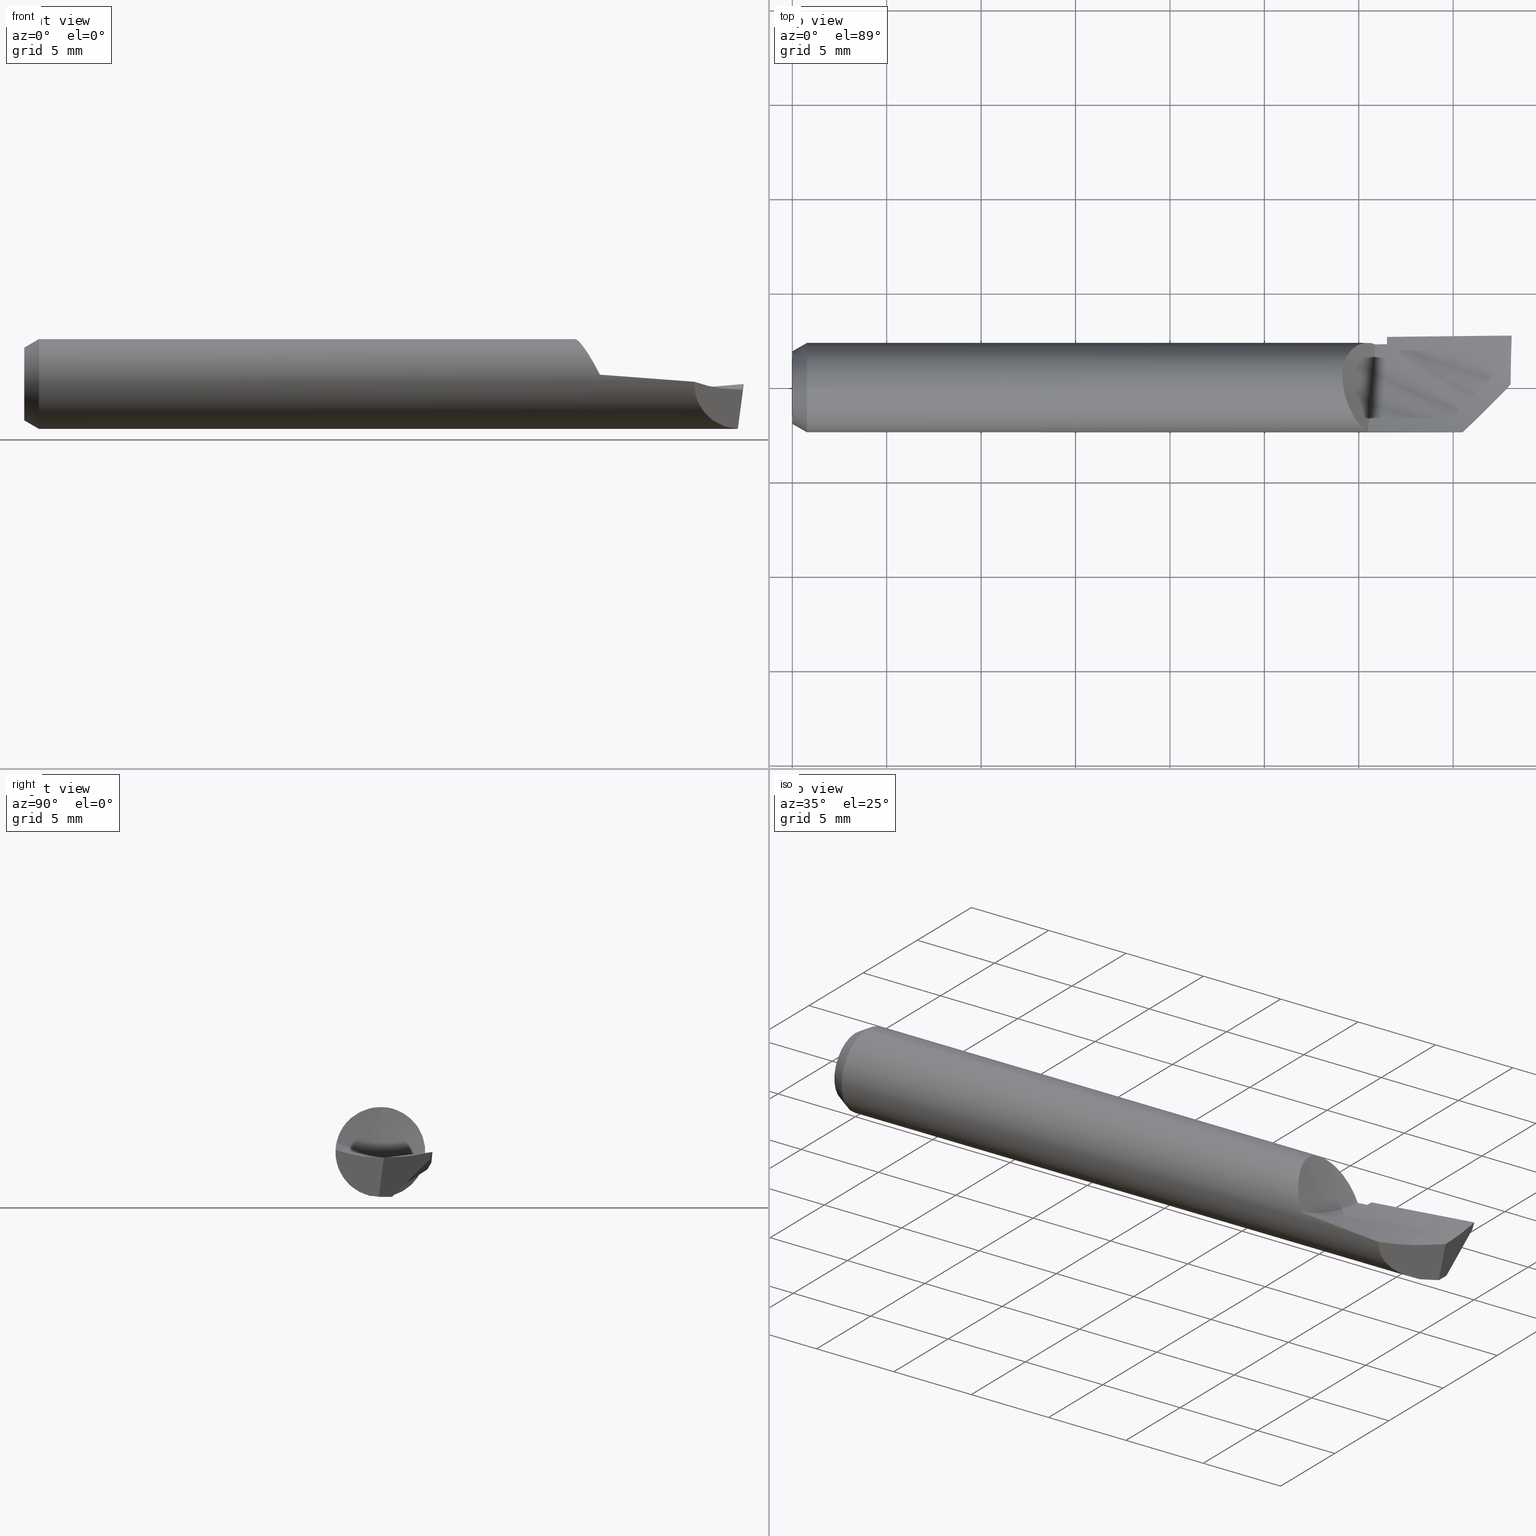
[diagram: canonical four-view strip — front | top / right | iso, engineering-drawing reading convention]
A machine part, canonical four-view strip (front | top / right | iso — engineering-drawing reading convention). The complete STEP part file that produces these views, byte-faithful:
ISO-10303-21;
HEADER;
FILE_DESCRIPTION (( 'STEP AP203' ),
    '1' );
FILE_NAME ('215754-HB210.STEP',
    '2024-07-31T18:05:51',
    ( '' ),
    ( '' ),
    'SwSTEP 2.0',
    'SolidWorks 2024',
    '' );
FILE_SCHEMA (( 'CONFIG_CONTROL_DESIGN' ));
ENDSEC;

DATA;
#1 = DIRECTION ( 'NONE',  ( -1.000000000000000000, -0.000000000000000000, -0.000000000000000000 ) ) ;
#2 = DIRECTION ( 'NONE',  ( -1.000000000000000000, -0.000000000000000000, -0.000000000000000000 ) ) ;
#3 = CARTESIAN_POINT ( 'NONE',  ( 1.499392605994886329, 0.09182044360717112053, -0.003761190601293689945 ) ) ;
#4 = FACE_OUTER_BOUND ( 'NONE', #578, .T. ) ;
#5 = B_SPLINE_CURVE_WITH_KNOTS ( 'NONE', 3,
 ( #485, #326, #271, #185 ),
 .UNSPECIFIED., .F., .F.,
 ( 4, 4 ),
 ( 0.0002546024990688748623, 0.006558907732038877537 ),
 .UNSPECIFIED. ) ;
#6 = DIRECTION ( 'NONE',  ( 0.000000000000000000, 0.000000000000000000, 1.000000000000000000 ) ) ;
#7 =( BOUNDED_CURVE ( )  B_SPLINE_CURVE ( 3, ( #621, #608, #144, #150 ),
 .UNSPECIFIED., .F., .T. ) 
 B_SPLINE_CURVE_WITH_KNOTS ( ( 4, 4 ),
 ( 6.212232684215154066, 6.245521343679157233 ),
 .UNSPECIFIED. ) 
 CURVE ( )  GEOMETRIC_REPRESENTATION_ITEM ( )  RATIONAL_B_SPLINE_CURVE ( ( 1.000000000000000000, 0.9999076575611176576, 0.9999076575611176576, 1.000000000000000000 ) ) 
 REPRESENTATION_ITEM ( '' )  );
#8 = CARTESIAN_POINT ( 'NONE',  ( 1.156695180967257208, 0.06469860383815320692, 0.06771607911251732725 ) ) ;
#9 = CARTESIAN_POINT ( 'NONE',  ( 1.148000000000000131, 0.006204244709569356649, 0.09344426064549808675 ) ) ;
#10 = CARTESIAN_POINT ( 'NONE',  ( 1.239999999999999991, 0.08074344207419088815, -0.04744279778861885261 ) ) ;
#11 = EDGE_CURVE ( 'NONE', #681, #609, #645, .T. ) ;
#12 = VERTEX_POINT ( 'NONE', #541 ) ;
#13 = PERSON_AND_ORGANIZATION ( #655, #398 ) ;
#14 = CARTESIAN_POINT ( 'NONE',  ( 1.498410732020100999, 0.1041796754470953601, -0.01263600234800665856 ) ) ;
#15 = B_SPLINE_CURVE_WITH_KNOTS ( 'NONE', 3,
 ( #107, #273, #529, #587 ),
 .UNSPECIFIED., .F., .F.,
 ( 4, 4 ),
 ( 0.000000000000000000, 1.000000000000000000 ),
 .UNSPECIFIED. ) ;
#16 = EDGE_LOOP ( 'NONE', ( #184, #514, #622 ) ) ;
#17 =( NAMED_UNIT ( * ) SI_UNIT ( $, .STERADIAN. ) SOLID_ANGLE_UNIT ( ) );
#18 = DIRECTION ( 'NONE',  ( 1.000000000000000000, 0.000000000000000000, 0.000000000000000000 ) ) ;
#19 = DIRECTION ( 'NONE',  ( 0.000000000000000000, 0.000000000000000000, 1.000000000000000000 ) ) ;
#20 = DATE_AND_TIME ( #24, #106 ) ;
#21 = CARTESIAN_POINT ( 'NONE',  ( 1.304444444444444962, 0.05141765096347571812, -0.02948195143761270925 ) ) ;
#22 = CARTESIAN_POINT ( 'NONE',  ( 1.171780070111329675, 0.08324920488106210548, 0.04294035540791954486 ) ) ;
#23 = EDGE_LOOP ( 'NONE', ( #656, #510, #566, #259 ) ) ;
#24 = CALENDAR_DATE ( 2024, 31, 7 ) ;
#25 = CARTESIAN_POINT ( 'NONE',  ( 1.202929359211318827, -0.06330286871536679183, 0.006143045300848167314 ) ) ;
#26 = CARTESIAN_POINT ( 'NONE',  ( 1.174651292824942850, 0.08538032817279551934, 0.03847803143860032554 ) ) ;
#27 = EDGE_LOOP ( 'NONE', ( #317, #426 ) ) ;
#28 = AXIS2_PLACEMENT_3D ( 'NONE', #676, #1, #101 ) ;
#29 = CC_DESIGN_PERSON_AND_ORGANIZATION_ASSIGNMENT ( #13, #637, ( #175 ) ) ;
#30 = VECTOR ( 'NONE', #458, 39.37007874015748143 ) ;
#31 = CARTESIAN_POINT ( 'NONE',  ( 1.174425359596326102, 0.08522188367699641554, 0.03882769481734219680 ) ) ;
#32 = EDGE_CURVE ( 'NONE', #430, #303, #52, .T. ) ;
#33 = ORIENTED_EDGE ( 'NONE', *, *, #525, .F. ) ;
#34 = CARTESIAN_POINT ( 'NONE',  ( 0.03057069675359059061, 0.000000000000000000, 0.000000000000000000 ) ) ;
#35 = ORIENTED_EDGE ( 'NONE', *, *, #245, .T. ) ;
#36 = CARTESIAN_POINT ( 'NONE',  ( 1.239999999999999547, 0.000000000000000000, -0.09364999999999999714 ) ) ;
#37 = ORIENTED_EDGE ( 'NONE', *, *, #308, .T. ) ;
#38 = SECURITY_CLASSIFICATION_LEVEL ( 'unclassified' ) ;
#39 = CARTESIAN_POINT ( 'NONE',  ( 1.199999999999999956, 0.000000000000000000, -0.09364999999999999714 ) ) ;
#40 = CARTESIAN_POINT ( 'NONE',  ( 0.000000000000000000, 0.000000000000000000, 0.000000000000000000 ) ) ;
#41 = ORIENTED_EDGE ( 'NONE', *, *, #615, .T. ) ;
#42 = CARTESIAN_POINT ( 'NONE',  ( 1.211257858874155380, 0.03503257738335138760, -0.02446814605735126921 ) ) ;
#43 = CARTESIAN_POINT ( 'NONE',  ( 1.148576821489901256, 0.001826048862966123945, 0.09363472875895696712 ) ) ;
#44 = ORIENTED_EDGE ( 'NONE', *, *, #296, .T. ) ;
#45 = CARTESIAN_POINT ( 'NONE',  ( 1.148000000000000131, -0.05547563012087897844, 0.1168117257122723851 ) ) ;
#46 = CARTESIAN_POINT ( 'NONE',  ( 1.167726105917510582, -0.05622133668068131362, 0.07491812423433109880 ) ) ;
#47 = EDGE_CURVE ( 'NONE', #430, #12, #613, .T. ) ;
#48 = VERTEX_POINT ( 'NONE', #379 ) ;
#49 = CARTESIAN_POINT ( 'NONE',  ( 1.307142857142857606, -0.03051731478104647774, -0.1268900357535900081 ) ) ;
#50 = CIRCLE ( 'NONE', #496, 0.07599999999999999811 ) ;
#51 = CARTESIAN_POINT ( 'NONE',  ( 1.160267250213739887, -0.04047724806400673087, 0.08466018272255967925 ) ) ;
#52 = CIRCLE ( 'NONE', #658, 0.09364999999999999714 ) ;
#53 = ORIENTED_EDGE ( 'NONE', *, *, #618, .T. ) ;
#54 = DIRECTION ( 'NONE',  ( 1.000000000000000000, 0.000000000000000000, 0.000000000000000000 ) ) ;
#55 =( BOUNDED_SURFACE ( )  B_SPLINE_SURFACE ( 3, 2, ( 
 ( #665, #348, #661, #298, #143 ),
 ( #499, #606, #560, #285, #301 ),
 ( #353, #21, #563, #90, #304 ),
 ( #508, #252, #457, #307, #178 ) ),
 .UNSPECIFIED., .F., .F., .T. ) 
 B_SPLINE_SURFACE_WITH_KNOTS ( ( 4, 4 ),
 ( 3, 2, 3 ),
 ( 0.000000000000000000, 1.000000000000000000 ),
 ( 0.000000000000000000, 0.5000000000000000000, 1.000000000000000000 ),
 .UNSPECIFIED. ) 
 GEOMETRIC_REPRESENTATION_ITEM ( )  RATIONAL_B_SPLINE_SURFACE ( (
 ( 1.000000000000000000, 0.9876883405951377704, 1.000000000000000000, 0.9876883405951377704, 1.000000000000000000),
 ( 0.9656170249359767865, 0.9537286770094286492, 0.9656170249359767865, 0.9537286770094286492, 0.9656170249359767865),
 ( 0.9656170249359767865, 0.9537286770094286492, 0.9656170249359767865, 0.9537286770094286492, 0.9656170249359767865),
 ( 1.000000000000000000, 0.9876883405951377704, 1.000000000000000000, 0.9876883405951377704, 1.000000000000000000) ) ) 
 REPRESENTATION_ITEM ( '' )  SURFACE ( )  );
#56 = CARTESIAN_POINT ( 'NONE',  ( 0.03057069675359059061, 0.000000000000000000, 0.000000000000000000 ) ) ;
#57 = DIRECTION ( 'NONE',  ( 0.000000000000000000, 0.000000000000000000, -1.000000000000000000 ) ) ;
#58 = CARTESIAN_POINT ( 'NONE',  ( 1.499284697934078148, 0.1065598484699400439, -0.005687555691664790067 ) ) ;
#59 = CARTESIAN_POINT ( 'NONE',  ( 1.370718729444907691, 0.1084999999999999853, -0.01136076838170603856 ) ) ;
#60 =( BOUNDED_CURVE ( )  B_SPLINE_CURVE ( 1, ( #670, #99 ),
 .UNSPECIFIED., .F., .T. ) 
 B_SPLINE_CURVE_WITH_KNOTS ( ( 2, 2 ),
 ( 0.002893631882954620250, 0.003411947105638062343 ),
 .UNSPECIFIED. ) 
 CURVE ( )  GEOMETRIC_REPRESENTATION_ITEM ( )  RATIONAL_B_SPLINE_CURVE ( ( 0.9945822379532474056, 0.9945822379532474056 ) ) 
 REPRESENTATION_ITEM ( '' )  );
#61 = EDGE_CURVE ( 'NONE', #311, #254, #267, .T. ) ;
#62 = CARTESIAN_POINT ( 'NONE',  ( 1.298652350113993048, -0.09316285039222936548, 0.01207143284203172559 ) ) ;
#63 = CIRCLE ( 'NONE', #242, 0.09364999999999999714 ) ;
#64 = CARTESIAN_POINT ( 'NONE',  ( 1.497655768038555157, 0.007005768038554515374, -0.01187811945948918750 ) ) ;
#65 = CARTESIAN_POINT ( 'NONE',  ( 1.240000000000011093, 0.1060807370296387303, -0.02278436374465247355 ) ) ;
#66 = CARTESIAN_POINT ( 'NONE',  ( 1.148731579005756620, 0.04212291331834853297, 0.08385177601506467460 ) ) ;
#67 = DIRECTION ( 'NONE',  ( 0.8660254037844377084, 6.123233995736780827E-17, 0.5000000000000012212 ) ) ;
#68 = CARTESIAN_POINT ( 'NONE',  ( 1.500000000000000222, 0.1084999999999999992, 0.000000000000000000 ) ) ;
#69 = DIRECTION ( 'NONE',  ( 0.000000000000000000, 0.000000000000000000, -1.000000000000000000 ) ) ;
#70 = CARTESIAN_POINT ( 'NONE',  ( 1.240000000000000213, 0.000000000000000000, 0.000000000000000000 ) ) ;
#71 = EDGE_CURVE ( 'NONE', #254, #48, #472, .T. ) ;
#72 = CARTESIAN_POINT ( 'NONE',  ( 1.500000000000000222, 0.1084999999999999992, 0.000000000000000000 ) ) ;
#73 = CARTESIAN_POINT ( 'NONE',  ( 1.194772460887949084, 0.09332505324249035228, 0.007808570231834198461 ) ) ;
#74 = APPROVAL_PERSON_ORGANIZATION ( #347, #405, #200 ) ;
#75 = CARTESIAN_POINT ( 'NONE',  ( 0.000000000000000000, 0.000000000000000000, 0.000000000000000000 ) ) ;
#76 = FACE_OUTER_BOUND ( 'NONE', #507, .T. ) ;
#77 = VERTEX_POINT ( 'NONE', #283 ) ;
#78 = CARTESIAN_POINT ( 'NONE',  ( 1.204122698830287330, 0.09357548210034757896, -0.006485616146305918372 ) ) ;
#79 = ORIENTED_EDGE ( 'NONE', *, *, #343, .T. ) ;
#80 = ADVANCED_FACE ( 'NONE', ( #589 ), #419, .F. ) ;
#81 = CARTESIAN_POINT ( 'NONE',  ( 1.200193042709057911, -0.09159678206204575901, 0.01949988679965345209 ) ) ;
#82 = AXIS2_PLACEMENT_3D ( 'NONE', #323, #54, #57 ) ;
#83 = FACE_OUTER_BOUND ( 'NONE', #266, .T. ) ;
#84 = AXIS2_PLACEMENT_3D ( 'NONE', #169, #2, #635 ) ;
#85 = CARTESIAN_POINT ( 'NONE',  ( 0.03057069675359059061, 1.146881727401496266E-17, -0.09364999999999999714 ) ) ;
#86 = ORIENTED_EDGE ( 'NONE', *, *, #128, .T. ) ;
#87 = DIRECTION ( 'NONE',  ( 0.1218739150664907706, 0.000000000000000000, 0.9925455903012041503 ) ) ;
#88 = CARTESIAN_POINT ( 'NONE',  ( 1.240000000000000213, 0.09093235533035093354, -0.02239708137674528005 ) ) ;
#89 = EDGE_CURVE ( 'NONE', #159, #100, #139, .T. ) ;
#90 = CARTESIAN_POINT ( 'NONE',  ( 0.9133333333333349957, 0.03979066797984411735, -0.04392792998639220847 ) ) ;
#91 = CARTESIAN_POINT ( 'NONE',  ( 1.164964881159045396, -0.05084867784880137825, 0.07870355941290420321 ) ) ;
#92 = EDGE_LOOP ( 'NONE', ( #562, #585, #35, #601, #456, #355, #524 ) ) ;
#93 = AXIS2_PLACEMENT_3D ( 'NONE', #581, #166, #6 ) ;
#94 = PRODUCT_DEFINITION_SHAPE ( 'NONE', 'NONE',  #175 ) ;
#95 = CYLINDRICAL_SURFACE ( 'NONE', #118, 0.1084999999999999992 ) ;
#96 = ORIENTED_EDGE ( 'NONE', *, *, #32, .T. ) ;
#97 = CARTESIAN_POINT ( 'NONE',  ( 1.307142857142857606, 0.1009593191957870867, -0.03136666973042469969 ) ) ;
#98 = EDGE_CURVE ( 'NONE', #609, #664, #231, .T. ) ;
#99 = CARTESIAN_POINT ( 'NONE',  ( 1.239999999999999991, 0.09788107471506568569, -0.03636530173190486576 ) ) ;
#100 = VERTEX_POINT ( 'NONE', #236 ) ;
#101 = DIRECTION ( 'NONE',  ( 0.000000000000000000, 0.000000000000000000, 1.000000000000000000 ) ) ;
#102 = DIRECTION ( 'NONE',  ( -0.7071067811865502373, 0.7071067811865447972, 0.000000000000000000 ) ) ;
#103 = EDGE_CURVE ( 'NONE', #664, #435, #349, .T. ) ;
#104 =( BOUNDED_CURVE ( )  B_SPLINE_CURVE ( 3, ( #625, #257, #455, #88 ),
 .UNSPECIFIED., .F., .T. ) 
 B_SPLINE_CURVE_WITH_KNOTS ( ( 4, 4 ),
 ( 9.255808676291182749E-05, 0.0004782894125386870907 ),
 .UNSPECIFIED. ) 
 CURVE ( )  GEOMETRIC_REPRESENTATION_ITEM ( )  RATIONAL_B_SPLINE_CURVE ( ( 0.9805422023702108358, 0.9794517822317697631, 0.9784376960691193448, 0.9774999438822595810 ) ) 
 REPRESENTATION_ITEM ( '' )  );
#105 = ORIENTED_EDGE ( 'NONE', *, *, #47, .T. ) ;
#106 = LOCAL_TIME ( 11, 5, 51.00000000000000000, #542 ) ;
#107 = CARTESIAN_POINT ( 'NONE',  ( 1.148000000000000131, 0.006204244709569356649, 0.09344426064549808675 ) ) ;
#108 = ORIENTED_EDGE ( 'NONE', *, *, #229, .T. ) ;
#109 = DIRECTION ( 'NONE',  ( 0.000000000000000000, -0.000000000000000000, 1.000000000000000000 ) ) ;
#110 = CARTESIAN_POINT ( 'NONE',  ( 1.229999274822195510, 0.08034742759774918253, -0.04811042881477656241 ) ) ;
#111 = DIRECTION ( 'NONE',  ( 0.000000000000000000, 0.000000000000000000, 1.000000000000000000 ) ) ;
#112 = ADVANCED_FACE ( 'NONE', ( #76 ), #438, .F. ) ;
#113 = ORIENTED_EDGE ( 'NONE', *, *, #330, .F. ) ;
#114 = LINE ( 'NONE', #284, #136 ) ;
#115 = DIRECTION ( 'NONE',  ( 1.000000000000000000, 0.000000000000000000, 0.000000000000000000 ) ) ;
#116 = AXIS2_PLACEMENT_3D ( 'NONE', #261, #109, #474 ) ;
#117 = DIRECTION ( 'NONE',  ( -1.000000000000000000, 0.000000000000000000, 0.000000000000000000 ) ) ;
#118 = AXIS2_PLACEMENT_3D ( 'NONE', #40, #402, #561 ) ;
#119 = FACE_OUTER_BOUND ( 'NONE', #179, .T. ) ;
#120 = FACE_OUTER_BOUND ( 'NONE', #23, .T. ) ;
#121 = CARTESIAN_POINT ( 'NONE',  ( 1.240000000000000213, 0.000000000000000000, 0.000000000000000000 ) ) ;
#122 = CC_DESIGN_PERSON_AND_ORGANIZATION_ASSIGNMENT ( #197, #610, ( #487 ) ) ;
#123 = APPROVAL_ROLE ( '' ) ;
#124 = DIRECTION ( 'NONE',  ( -1.000000000000000000, -0.000000000000000000, -0.000000000000000000 ) ) ;
#125 = PERSON_AND_ORGANIZATION ( #655, #398 ) ;
#126 = CARTESIAN_POINT ( 'NONE',  ( 1.173307641915292798, 0.08441651375760897413, 0.04056095321443215634 ) ) ;
#127 = VERTEX_POINT ( 'NONE', #391 ) ;
#128 = EDGE_CURVE ( 'NONE', #100, #159, #401, .T. ) ;
#129 = ORIENTED_EDGE ( 'NONE', *, *, #153, .T. ) ;
#130 = EDGE_CURVE ( 'NONE', #48, #629, #428, .T. ) ;
#131 = CARTESIAN_POINT ( 'NONE',  ( 1.174087616056179728, 0.08498293252717985247, 0.03935073517130165122 ) ) ;
#132 = ORIENTED_EDGE ( 'NONE', *, *, #296, .F. ) ;
#133 = PERSON_AND_ORGANIZATION ( #655, #398 ) ;
#134 = B_SPLINE_CURVE_WITH_KNOTS ( 'NONE', 3,
 ( #324, #593, #14, #227, #158, #381, #58, #475, #174, #221 ),
 .UNSPECIFIED., .F., .F.,
 ( 4, 3, 3, 4 ),
 ( 0.000000000000000000, 0.0001024766680105438662, 0.0002561918832182297407, 0.0004099073060419796723 ),
 .UNSPECIFIED. ) ;
#135 = CARTESIAN_POINT ( 'NONE',  ( 1.199968019606115321, 0.09394585953794216959, -8.313324166386058605E-05 ) ) ;
#136 = VECTOR ( 'NONE', #67, 39.37007874015748854 ) ;
#137 = APPROVAL_DATE_TIME ( #142, #405 ) ;
#138 = CARTESIAN_POINT ( 'NONE',  ( 0.7285714285714303129, 0.08777834388968180912, -0.06377469987373332594 ) ) ;
#139 = CIRCLE ( 'NONE', #233, 0.09364999999999999714 ) ;
#140 = PLANE ( 'NONE',  #382 ) ;
#141 = EDGE_LOOP ( 'NONE', ( #96, #392, #199, #553, #442, #626, #147, #449, #361, #517, #276, #306 ) ) ;
#142 = DATE_AND_TIME ( #248, #454 ) ;
#143 = CARTESIAN_POINT ( 'NONE',  ( 0.7177777777777798462, -0.1200748292999250927, 0.1043874820955170424 ) ) ;
#144 = CARTESIAN_POINT ( 'NONE',  ( 1.487537909818598125, -0.002078273994535322425, -0.09363270386187780292 ) ) ;
#145 = VERTEX_POINT ( 'NONE', #491 ) ;
#146 = CARTESIAN_POINT ( 'NONE',  ( 1.166899447017619051, -0.05465046207729526428, 0.07606594800267757472 ) ) ;
#147 = ORIENTED_EDGE ( 'NONE', *, *, #98, .T. ) ;
#148 = AXIS2_PLACEMENT_3D ( 'NONE', #223, #18, #162 ) ;
#149 = CARTESIAN_POINT ( 'NONE',  ( 1.148000000000000131, -0.004899846547459465150, 0.09241289850418149543 ) ) ;
#150 = CARTESIAN_POINT ( 'NONE',  ( 1.487533092774547372, -0.003116907225453087980, -0.09359811637713616461 ) ) ;
#151 =( BOUNDED_SURFACE ( )  B_SPLINE_SURFACE ( 1, 2, ( 
 ( #68, #281, #486, #249, #138 ),
 ( #235, #504, #230, #437, #650 ) ),
 .UNSPECIFIED., .F., .F., .T. ) 
 B_SPLINE_SURFACE_WITH_KNOTS ( ( 2, 2 ),
 ( 3, 2, 3 ),
 ( 0.000000000000000000, 1.000000000000000000 ),
 ( 0.000000000000000000, 0.5000000000000000000, 1.000000000000000000 ),
 .UNSPECIFIED. ) 
 GEOMETRIC_REPRESENTATION_ITEM ( )  RATIONAL_B_SPLINE_SURFACE ( (
 ( 1.000000000000000000, 0.9876883405951377704, 1.000000000000000000, 0.9876883405951377704, 1.000000000000000000),
 ( 1.000000000000000000, 0.9876883405951377704, 1.000000000000000000, 0.9876883405951377704, 1.000000000000000000) ) ) 
 REPRESENTATION_ITEM ( '' )  SURFACE ( )  );
#152 = ORIENTED_EDGE ( 'NONE', *, *, #153, .F. ) ;
#153 = EDGE_CURVE ( 'NONE', #314, #12, #653, .T. ) ;
#154 = CARTESIAN_POINT ( 'NONE',  ( 0.9214285714285728179, -0.06823486854704864657, -0.1112492264663436647 ) ) ;
#155 = CARTESIAN_POINT ( 'NONE',  ( 1.150325259475817097, -0.009300277287042121865, 0.09364995429079847611 ) ) ;
#156 = ORIENTED_EDGE ( 'NONE', *, *, #207, .F. ) ;
#157 = CARTESIAN_POINT ( 'NONE',  ( 0.000000000000000000, 1.038806647376742246E-17, 0.07599999999999999811 ) ) ;
#158 = CARTESIAN_POINT ( 'NONE',  ( 1.498807939443694615, 0.1052630847343396236, -0.009478130652275925522 ) ) ;
#159 = VERTEX_POINT ( 'NONE', #85 ) ;
#160 = FACE_OUTER_BOUND ( 'NONE', #413, .T. ) ;
#161 = CC_DESIGN_APPROVAL ( #405, ( #666 ) ) ;
#162 = DIRECTION ( 'NONE',  ( 0.000000000000000000, 0.000000000000000000, -1.000000000000000000 ) ) ;
#163 = ORIENTED_EDGE ( 'NONE', *, *, #516, .F. ) ;
#164 = PRODUCT_RELATED_PRODUCT_CATEGORY ( 'detail', '', ( #203 ) ) ;
#165 = CARTESIAN_POINT ( 'NONE',  ( 1.148853733171861569, -8.222118152487938208E-07, 0.09365456280322455307 ) ) ;
#166 = DIRECTION ( 'NONE',  ( -1.000000000000000000, -0.000000000000000000, -0.000000000000000000 ) ) ;
#167 = CARTESIAN_POINT ( 'NONE',  ( 1.157462637525535243, 0.06608533833252450140, 0.06635662391456143006 ) ) ;
#168 = COORDINATED_UNIVERSAL_TIME_OFFSET ( 8, 0, .BEHIND. ) ;
#169 = CARTESIAN_POINT ( 'NONE',  ( 0.000000000000000000, 0.000000000000000000, 0.000000000000000000 ) ) ;
#170 = ORIENTED_EDGE ( 'NONE', *, *, #215, .F. ) ;
#171 =( BOUNDED_CURVE ( )  B_SPLINE_CURVE ( 2, ( #368, #62, #638 ),
 .UNSPECIFIED., .F., .T. ) 
 B_SPLINE_CURVE_WITH_KNOTS ( ( 3, 3 ),
 ( 0.6173980248220553024, 0.8679066118161332666 ),
 .UNSPECIFIED. ) 
 CURVE ( )  GEOMETRIC_REPRESENTATION_ITEM ( )  RATIONAL_B_SPLINE_CURVE ( ( 0.9785522738925220843, 0.9753364756070597164, 0.9781958891234434628 ) ) 
 REPRESENTATION_ITEM ( '' )  );
#172 = PERSON_AND_ORGANIZATION ( #655, #398 ) ;
#173 = EDGE_CURVE ( 'NONE', #77, #664, #293, .T. ) ;
#174 = CARTESIAN_POINT ( 'NONE',  ( 1.499761529745958333, 0.1078543937081328230, -0.001896225925224543328 ) ) ;
#175 = PRODUCT_DEFINITION ( 'UNKNOWN', '', #487, #364 ) ;
#176 = DIRECTION ( 'NONE',  ( 0.000000000000000000, 0.000000000000000000, 1.000000000000000000 ) ) ;
#177 =( BOUNDED_CURVE ( )  B_SPLINE_CURVE ( 1, ( #216, #418 ),
 .UNSPECIFIED., .F., .T. ) 
 B_SPLINE_CURVE_WITH_KNOTS ( ( 2, 2 ),
 ( 0.0007316003027894401158, 0.0007571755484555225480 ),
 .UNSPECIFIED. ) 
 CURVE ( )  GEOMETRIC_REPRESENTATION_ITEM ( )  RATIONAL_B_SPLINE_CURVE ( ( 0.9945822379532474056, 0.9945822379532474056 ) ) 
 REPRESENTATION_ITEM ( '' )  );
#178 = CARTESIAN_POINT ( 'NONE',  ( 0.7177777777777798462, 0.1363835579169330459, -0.08194044288119670116 ) ) ;
#179 = EDGE_LOOP ( 'NONE', ( #407, #129 ) ) ;
#180 = CARTESIAN_POINT ( 'NONE',  ( 0.000000000000000000, 0.000000000000000000, -0.07599999999999999811 ) ) ;
#181 = DIRECTION ( 'NONE',  ( 1.000000000000000000, -0.000000000000000000, -0.000000000000000000 ) ) ;
#182 = CARTESIAN_POINT ( 'NONE',  ( 0.000000000000000000, 1.146881727401496266E-17, -0.09364999999999999714 ) ) ;
#183 = CARTESIAN_POINT ( 'NONE',  ( 1.227790124694641882, 0.09071330555731095535, -0.02328642545694233415 ) ) ;
#184 = ORIENTED_EDGE ( 'NONE', *, *, #61, .T. ) ;
#185 = CARTESIAN_POINT ( 'NONE',  ( 1.487763293907420126, 0.02399154554081828553, -0.09364999999999999714 ) ) ;
#186 = DIRECTION ( 'NONE',  ( 0.000000000000000000, 0.000000000000000000, -1.000000000000000000 ) ) ;
#187 = EDGE_CURVE ( 'NONE', #435, #568, #470, .T. ) ;
#188 = ORIENTED_EDGE ( 'NONE', *, *, #229, .F. ) ;
#189 = CALENDAR_DATE ( 2024, 31, 7 ) ;
#190 = CARTESIAN_POINT ( 'NONE',  ( 1.193124300786494008, -0.08870291174945742207, 0.03325054257018153492 ) ) ;
#191 = VERTEX_POINT ( 'NONE', #354 ) ;
#192 = PERSON_AND_ORGANIZATION ( #655, #398 ) ;
#193 = CARTESIAN_POINT ( 'NONE',  ( 1.215594912558480400, 0.09047690327886798167, -0.02417131508764828671 ) ) ;
#194 = CARTESIAN_POINT ( 'NONE',  ( 1.230000000000000204, 0.09757429370828984982, -0.03718060199562600587 ) ) ;
#195 = ORIENTED_EDGE ( 'NONE', *, *, #239, .F. ) ;
#196 = LOCAL_TIME ( 11, 5, 51.00000000000000000, #393 ) ;
#197 = PERSON_AND_ORGANIZATION ( #655, #398 ) ;
#198 = CARTESIAN_POINT ( 'NONE',  ( 1.394336912536108253, -0.09631308746389261044, -0.05083672434967974330 ) ) ;
#199 = ORIENTED_EDGE ( 'NONE', *, *, #128, .F. ) ;
#200 = APPROVAL_ROLE ( '' ) ;
#201 = CARTESIAN_POINT ( 'NONE',  ( 1.158214927748086209, -0.03519650015763708950, 0.08695964677823084243 ) ) ;
#202 = EDGE_LOOP ( 'NONE', ( #132, #37, #462 ) ) ;
#203 = PRODUCT ( '215754-HB210', '215754-HB210', '', ( #536 ) ) ;
#204 = CARTESIAN_POINT ( 'NONE',  ( 1.240000000000011093, 0.1060807370296387303, -0.02278436374465247355 ) ) ;
#205 = DIRECTION ( 'NONE',  ( -0.7071067811865447972, -0.7071067811865502373, 0.000000000000000000 ) ) ;
#206 = ORIENTED_EDGE ( 'NONE', *, *, #308, .F. ) ;
#207 = EDGE_CURVE ( 'NONE', #668, #159, #409, .T. ) ;
#208 = CIRCLE ( 'NONE', #294, 0.1084999999999999992 ) ;
#209 = CARTESIAN_POINT ( 'NONE',  ( 1.168921519492841066, -0.05838966857612342548, 0.07321969953285872856 ) ) ;
#210 = EDGE_LOOP ( 'NONE', ( #466, #292, #237, #572 ) ) ;
#211 = FACE_OUTER_BOUND ( 'NONE', #439, .T. ) ;
#212 = CARTESIAN_POINT ( 'NONE',  ( 1.148121537467483799, 0.005183671323934725336, 0.09351202468710630156 ) ) ;
#213 = ORIENTED_EDGE ( 'NONE', *, *, #32, .F. ) ;
#214 = CARTESIAN_POINT ( 'NONE',  ( 1.487763293907420126, 0.02399154554081828553, -0.09364999999999999714 ) ) ;
#215 = EDGE_CURVE ( 'NONE', #241, #303, #567, .T. ) ;
#216 = CARTESIAN_POINT ( 'NONE',  ( 1.240000000000000213, 0.009257787481579626832, -0.09365000000000006652 ) ) ;
#217 = CARTESIAN_POINT ( 'NONE',  ( 1.498113741625893836, 0.04115732881145446609, -0.01057558320799731159 ) ) ;
#218 = APPROVAL ( #547, 'UNSPECIFIED' ) ;
#219 = CARTESIAN_POINT ( 'NONE',  ( 1.148000000000000131, 0.03666875582908384057, 0.08617264557820555892 ) ) ;
#220 = APPROVAL_PERSON_ORGANIZATION ( #481, #277, #123 ) ;
#221 = CARTESIAN_POINT ( 'NONE',  ( 1.500000000000000222, 0.1084999999999999992, 0.000000000000000000 ) ) ;
#222 = CARTESIAN_POINT ( 'NONE',  ( 1.498894889242270212, 0.07501483299892787449, -0.006620206759045534767 ) ) ;
#223 = CARTESIAN_POINT ( 'NONE',  ( 0.03057069675359059061, 0.000000000000000000, 0.000000000000000000 ) ) ;
#224 = ORIENTED_EDGE ( 'NONE', *, *, #373, .F. ) ;
#225 = ADVANCED_FACE ( 'NONE', ( #515 ), #95, .T. ) ;
#226 = CALENDAR_DATE ( 2024, 31, 7 ) ;
#227 = CARTESIAN_POINT ( 'NONE',  ( 1.498569614866262834, 0.1046130388257509730, -0.01137285464977739503 ) ) ;
#228 = EDGE_LOOP ( 'NONE', ( #33, #188, #595, #452, #53 ) ) ;
#229 = EDGE_CURVE ( 'NONE', #369, #127, #60, .T. ) ;
#230 = CARTESIAN_POINT ( 'NONE',  ( 1.114285714285715212, 0.09364225179700762236, -0.04619814537202305421 ) ) ;
#231 = B_SPLINE_CURVE_WITH_KNOTS ( 'NONE', 3,
 ( #232, #66, #647, #280, #476, #387, #530, #8, #636, #167, #375, #244, #341, #489, #597, #342, #22, #126, #131, #31, #26, #338, #291, #604, #243, #441, #394, #448, #654, #551, #240, #548, #73, #135, #78, #497, #660, #247 ),
 .UNSPECIFIED., .F., .F.,
 ( 4, 2, 2, 1, 1, 2, 2, 2, 2, 1, 1, 1, 2, 2, 2, 2, 2, 1, 2, 2, 2, 4 ),
 ( 0.000000000000000000, 0.1250000000000141276, 0.1875000000000214828, 0.2187500000000251466, 0.2343750000000269784, 0.2421875000000279499, 0.2500000000000289213, 0.3750000000000379141, 0.4375000000000425215, 0.4687500000000447420, 0.4843750000000458522, 0.4921875000000469624, 0.4960937500000475731, 0.5000000000000481837, 0.6250000000000336398, 0.6875000000000257572, 0.7187500000000217604, 0.7343750000000192069, 0.7421875000000185407, 0.7500000000000177636, 0.8750000000000089928, 1.000000000000000000 ),
 .UNSPECIFIED. ) ;
#232 = CARTESIAN_POINT ( 'NONE',  ( 1.148000000000000131, 0.03666875582908384057, 0.08617264557820555892 ) ) ;
#233 = AXIS2_PLACEMENT_3D ( 'NONE', #56, #372, #19 ) ;
#234 = DIRECTION ( 'NONE',  ( 1.000000000000000000, 0.000000000000000000, 0.000000000000000000 ) ) ;
#235 = CARTESIAN_POINT ( 'NONE',  ( 1.500000000000000222, 0.1033350858006551326, -0.01500000000000000291 ) ) ;
#236 = CARTESIAN_POINT ( 'NONE',  ( 0.03057069675359059061, 0.000000000000000000, 0.09364999999999999714 ) ) ;
#237 = ORIENTED_EDGE ( 'NONE', *, *, #207, .T. ) ;
#238 = DIRECTION ( 'NONE',  ( -1.000000000000000000, -0.000000000000000000, -0.000000000000000000 ) ) ;
#239 = EDGE_CURVE ( 'NONE', #568, #681, #565, .T. ) ;
#240 = CARTESIAN_POINT ( 'NONE',  ( 1.193968417897632639, 0.09321453594628099915, 0.009030502199227338767 ) ) ;
#241 = VERTEX_POINT ( 'NONE', #305 ) ;
#242 = AXIS2_PLACEMENT_3D ( 'NONE', #378, #115, #576 ) ;
#243 = CARTESIAN_POINT ( 'NONE',  ( 1.184988112557211037, 0.09089690410810177812, 0.02269689307588242111 ) ) ;
#244 = CARTESIAN_POINT ( 'NONE',  ( 1.159837862559129018, 0.07019894292448460027, 0.06219465053792667258 ) ) ;
#245 = EDGE_CURVE ( 'NONE', #311, #77, #104, .T. ) ;
#246 =( BOUNDED_CURVE ( )  B_SPLINE_CURVE ( 2, ( #331, #537, #65 ),
 .UNSPECIFIED., .F., .T. ) 
 B_SPLINE_CURVE_WITH_KNOTS ( ( 3, 3 ),
 ( 0.000000000000000000, 0.3365654910810875755 ),
 .UNSPECIFIED. ) 
 CURVE ( )  GEOMETRIC_REPRESENTATION_ITEM ( )  RATIONAL_B_SPLINE_CURVE ( ( 1.000000000000000000, 0.9917126406127588778, 0.9945822379532467394 ) ) 
 REPRESENTATION_ITEM ( '' )  );
#247 = CARTESIAN_POINT ( 'NONE',  ( 1.215594912558480400, 0.09047690327886798167, -0.02417131508764828671 ) ) ;
#248 = CALENDAR_DATE ( 2024, 31, 7 ) ;
#249 = CARTESIAN_POINT ( 'NONE',  ( 0.9214285714285728179, 0.09787926403604831072, -0.04987197600415139292 ) ) ;
#250 = CARTESIAN_POINT ( 'NONE',  ( 1.487533092774547372, -0.003116907225453087980, -0.09359811637713616461 ) ) ;
#251 = ORIENTED_EDGE ( 'NONE', *, *, #71, .T. ) ;
#252 = CARTESIAN_POINT ( 'NONE',  ( 1.304444444444445184, 0.1606972725960162107, -0.01123090061018719617 ) ) ;
#253 = CARTESIAN_POINT ( 'NONE',  ( 1.500000000000000222, 0.1084999999999999992, 0.000000000000000000 ) ) ;
#254 = VERTEX_POINT ( 'NONE', #253 ) ;
#255 = B_SPLINE_CURVE_WITH_KNOTS ( 'NONE', 3,
 ( #214, #624, #460, #526 ),
 .UNSPECIFIED., .F., .F.,
 ( 4, 4 ),
 ( 2.604727758722901035E-05, 0.002872561671176806445 ),
 .UNSPECIFIED. ) ;
#256 = CARTESIAN_POINT ( 'NONE',  ( 1.114285714285715212, 0.09364225179700762236, -0.04619814537202305421 ) ) ;
#257 = CARTESIAN_POINT ( 'NONE',  ( 1.239999999999999991, 0.1010776689460062688, -0.02252625180451624243 ) ) ;
#258 = EDGE_CURVE ( 'NONE', #521, #145, #313, .T. ) ;
#259 = ORIENTED_EDGE ( 'NONE', *, *, #423, .F. ) ;
#260 = ORIENTED_EDGE ( 'NONE', *, *, #403, .F. ) ;
#261 = CARTESIAN_POINT ( 'NONE',  ( 1.199999999999999956, 0.000000000000000000, -0.09364999999999999714 ) ) ;
#262 = DIRECTION ( 'NONE',  ( 0.000000000000000000, 0.000000000000000000, -1.000000000000000000 ) ) ;
#263 = EDGE_LOOP ( 'NONE', ( #322, #290, #86, #156 ) ) ;
#264 = CARTESIAN_POINT ( 'NONE',  ( 1.147999999999999909, 0.1069463880967316399, 0.07909849010610423004 ) ) ;
#265 = CARTESIAN_POINT ( 'NONE',  ( 1.229999274822195510, 0.08034742759774918253, -0.04811042881477656241 ) ) ;
#266 = EDGE_LOOP ( 'NONE', ( #459, #416, #251, #206, #582, #383 ) ) ;
#267 =( BOUNDED_CURVE ( )  B_SPLINE_CURVE ( 2, ( #473, #59, #643 ),
 .UNSPECIFIED., .F., .T. ) 
 B_SPLINE_CURVE_WITH_KNOTS ( ( 3, 3 ),
 ( 0.6680663190920044237, 1.000000000000000000 ),
 .UNSPECIFIED. ) 
 CURVE ( )  GEOMETRIC_REPRESENTATION_ITEM ( )  RATIONAL_B_SPLINE_CURVE ( ( 0.9805422023702407008, 0.9779011347166750578, 0.9859596877570645512 ) ) 
 REPRESENTATION_ITEM ( '' )  );
#268 = DIRECTION ( 'NONE',  ( 0.000000000000000000, 0.000000000000000000, 1.000000000000000000 ) ) ;
#269 = CARTESIAN_POINT ( 'NONE',  ( 1.397117201850304857, -0.09353279814969597816, 0.004683820052929599069 ) ) ;
#270 = CARTESIAN_POINT ( 'NONE',  ( 1.500000000000000222, 0.1084999999999999992, 0.000000000000000000 ) ) ;
#271 = CARTESIAN_POINT ( 'NONE',  ( 1.405162067882042454, 0.01930639470269339755, -0.09364999999999995550 ) ) ;
#272 = VECTOR ( 'NONE', #544, 39.37007874015748143 ) ;
#273 = CARTESIAN_POINT ( 'NONE',  ( 1.148000000000000131, 0.01626035089777073603, 0.09060969966771643958 ) ) ;
#274 = ADVANCED_FACE ( 'NONE', ( #674 ), #140, .F. ) ;
#275 = AXIS2_PLACEMENT_3D ( 'NONE', #334, #117, #111 ) ;
#276 = ORIENTED_EDGE ( 'NONE', *, *, #411, .F. ) ;
#277 = APPROVAL ( #287, 'UNSPECIFIED' ) ;
#278 = CARTESIAN_POINT ( 'NONE',  ( 1.239999999999999991, 0.08074344207419088815, -0.04744279778861885261 ) ) ;
#279 = EDGE_CURVE ( 'NONE', #145, #617, #7, .T. ) ;
#280 = CARTESIAN_POINT ( 'NONE',  ( 1.152354427575245976, 0.05497717952771397076, 0.07587532363428109439 ) ) ;
#281 = CARTESIAN_POINT ( 'NONE',  ( 1.307142857142857606, 0.1085000000000000131, -0.01718471177521218446 ) ) ;
#282 = DIMENSIONAL_EXPONENTS ( 1.000000000000000000, 0.000000000000000000, 0.000000000000000000, 0.000000000000000000, 0.000000000000000000, 0.000000000000000000, 0.000000000000000000 ) ;
#283 = CARTESIAN_POINT ( 'NONE',  ( 1.240000000000000213, 0.09093235533035093354, -0.02239708137674528005 ) ) ;
#284 = CARTESIAN_POINT ( 'NONE',  ( 0.03057069675359059061, 1.146881727401496266E-17, 0.09364999999999999714 ) ) ;
#285 = CARTESIAN_POINT ( 'NONE',  ( 0.9133333333333349957, -0.05892680970412268737, 0.006371137203487211263 ) ) ;
#286 = DIRECTION ( 'NONE',  ( 1.000000000000000000, 0.000000000000000000, 0.000000000000000000 ) ) ;
#287 = APPROVAL_STATUS ( 'not_yet_approved' ) ;
#288 = ADVANCED_FACE ( 'NONE', ( #302 ), #360, .F. ) ;
#289 = CARTESIAN_POINT ( 'NONE',  ( 1.240000000000000213, 0.09364999999999999714, 0.000000000000000000 ) ) ;
#290 = ORIENTED_EDGE ( 'NONE', *, *, #671, .T. ) ;
#291 = CARTESIAN_POINT ( 'NONE',  ( 1.177129380349658305, 0.08708831898437832675, 0.03464762275841793554 ) ) ;
#292 = ORIENTED_EDGE ( 'NONE', *, *, #550, .F. ) ;
#293 =( BOUNDED_CURVE ( )  B_SPLINE_CURVE ( 2, ( #494, #183, #445 ),
 .UNSPECIFIED., .F., .T. ) 
 B_SPLINE_CURVE_WITH_KNOTS ( ( 3, 3 ),
 ( 0.3319336809084333928, 0.3630297608688256017 ),
 .UNSPECIFIED. ) 
 CURVE ( )  GEOMETRIC_REPRESENTATION_ITEM ( )  RATIONAL_B_SPLINE_CURVE ( ( 0.9774999438821363462, 0.9777465956879386466, 0.9780868586215527571 ) ) 
 REPRESENTATION_ITEM ( '' )  );
#294 = AXIS2_PLACEMENT_3D ( 'NONE', #570, #471, #268 ) ;
#295 = CARTESIAN_POINT ( 'NONE',  ( 1.176653163846027139, -0.07108318674311234209, 0.06187157980703892474 ) ) ;
#296 = EDGE_CURVE ( 'NONE', #617, #629, #527, .T. ) ;
#297 = AXIS2_PLACEMENT_3D ( 'NONE', #468, #519, #262 ) ;
#298 = CARTESIAN_POINT ( 'NONE',  ( 0.9133333333333349957, -0.1366081822285111214, 0.08536949745978415771 ) ) ;
#299 = CARTESIAN_POINT ( 'NONE',  ( 1.186920597602683092, -0.08303519900622281791, 0.04456531780849256469 ) ) ;
#300 = ORIENTED_EDGE ( 'NONE', *, *, #89, .F. ) ;
#301 = CARTESIAN_POINT ( 'NONE',  ( 0.7177777777777798462, -0.05650037319417050563, 0.01531991718997334669 ) ) ;
#302 = FACE_OUTER_BOUND ( 'NONE', #228, .T. ) ;
#303 = VERTEX_POINT ( 'NONE', #36 ) ;
#304 = CARTESIAN_POINT ( 'NONE',  ( 0.7177777777777798462, 0.03202968257815186348, -0.04900093333530534945 ) ) ;
#305 = CARTESIAN_POINT ( 'NONE',  ( 1.240000000000000213, 0.009257787481579626832, -0.09365000000000006652 ) ) ;
#306 = ORIENTED_EDGE ( 'NONE', *, *, #47, .F. ) ;
#307 = CARTESIAN_POINT ( 'NONE',  ( 0.9133333333333349957, 0.1493616491026159843, -0.06033940939105427587 ) ) ;
#308 = EDGE_CURVE ( 'NONE', #617, #48, #425, .T. ) ;
#309 = DIRECTION ( 'NONE',  ( 0.000000000000000000, 0.000000000000000000, 1.000000000000000000 ) ) ;
#310 = CARTESIAN_POINT ( 'NONE',  ( 1.148774162755310746, 0.0005224480527178247983, 0.09364890627534444567 ) ) ;
#311 = VERTEX_POINT ( 'NONE', #415 ) ;
#312 = CARTESIAN_POINT ( 'NONE',  ( 1.239999999999999991, 0.09788107471506568569, -0.03636530173190486576 ) ) ;
#313 = LINE ( 'NONE', #616, #498 ) ;
#314 = VERTEX_POINT ( 'NONE', #110 ) ;
#315 = CARTESIAN_POINT ( 'NONE',  ( 0.9214285714285728179, 0.08632518439822819967, -0.06102962101362140179 ) ) ;
#316 = ADVANCED_FACE ( 'NONE', ( #631 ), #479, .T. ) ;
#317 = ORIENTED_EDGE ( 'NONE', *, *, #11, .F. ) ;
#318 =( BOUNDED_CURVE ( )  B_SPLINE_CURVE ( 1, ( #312, #204 ),
 .UNSPECIFIED., .F., .T. ) 
 B_SPLINE_CURVE_WITH_KNOTS ( ( 2, 2 ),
 ( 2.168404344971008868E-19, 0.0004029534795321209912 ),
 .UNSPECIFIED. ) 
 CURVE ( )  GEOMETRIC_REPRESENTATION_ITEM ( )  RATIONAL_B_SPLINE_CURVE ( ( 0.9945822379532474056, 0.9945822379532474056 ) ) 
 REPRESENTATION_ITEM ( '' )  );
#319 = CC_DESIGN_PERSON_AND_ORGANIZATION_ASSIGNMENT ( #133, #657, ( #487 ) ) ;
#320 = DIRECTION ( 'NONE',  ( -1.000000000000000000, -0.000000000000000000, -0.000000000000000000 ) ) ;
#321 = UNCERTAINTY_MEASURE_WITH_UNIT (LENGTH_MEASURE( 1.000000000000000082E-05 ), #586, 'distance_accuracy_value', 'NONE');
#322 = ORIENTED_EDGE ( 'NONE', *, *, #615, .F. ) ;
#323 = CARTESIAN_POINT ( 'NONE',  ( 0.03057069675359059061, 0.000000000000000000, 0.000000000000000000 ) ) ;
#324 = CARTESIAN_POINT ( 'NONE',  ( 1.498093014994710481, 0.1033114702713285454, -0.01516179632514417543 ) ) ;
#325 = CARTESIAN_POINT ( 'NONE',  ( 1.229997824466591005, 0.009341362891033938229, -0.09318294598088670833 ) ) ;
#326 = CARTESIAN_POINT ( 'NONE',  ( 1.322563398559102099, 0.01457830066443163014, -0.09364999999999999714 ) ) ;
#327 = DIRECTION ( 'NONE',  ( 0.1220122463319276707, 0.1220122463319285866, 0.9850005195379714085 ) ) ;
#328 = ORIENTED_EDGE ( 'NONE', *, *, #386, .T. ) ;
#329 = CIRCLE ( 'NONE', #28, 0.07599999999999999811 ) ;
#330 = EDGE_CURVE ( 'NONE', #681, #609, #15, .T. ) ;
#331 = CARTESIAN_POINT ( 'NONE',  ( 1.500000000000000222, 0.1084999999999999992, 0.000000000000000000 ) ) ;
#332 = VECTOR ( 'NONE', #509, 39.37007874015748854 ) ;
#333 = DIRECTION ( 'NONE',  ( -1.000000000000000000, -0.000000000000000000, -0.000000000000000000 ) ) ;
#334 = CARTESIAN_POINT ( 'NONE',  ( 1.148000000000000131, 0.000000000000000000, 0.000000000000000000 ) ) ;
#335 = CARTESIAN_POINT ( 'NONE',  ( 1.169225650606404709, -0.05893110837954828457, 0.07278470785884573468 ) ) ;
#336 = PLANE ( 'NONE',  #677 ) ;
#337 = CC_DESIGN_APPROVAL ( #277, ( #175 ) ) ;
#338 = CARTESIAN_POINT ( 'NONE',  ( 1.174808038669047594, 0.08548901866737286526, 0.03823564250492614280 ) ) ;
#339 = ORIENTED_EDGE ( 'NONE', *, *, #386, .F. ) ;
#340 =( BOUNDED_CURVE ( )  B_SPLINE_CURVE ( 2, ( #265, #523, #10 ),
 .UNSPECIFIED., .F., .T. ) 
 B_SPLINE_CURVE_WITH_KNOTS ( ( 3, 3 ),
 ( 0.6505143596091164104, 0.6634345089193172118 ),
 .UNSPECIFIED. ) 
 CURVE ( )  GEOMETRIC_REPRESENTATION_ITEM ( )  RATIONAL_B_SPLINE_CURVE ( ( 0.9948189969154002110, 0.9946923966803868922, 0.9945822379532399671 ) ) 
 REPRESENTATION_ITEM ( '' )  );
#341 = CARTESIAN_POINT ( 'NONE',  ( 1.162293407963908010, 0.07366403736510233891, 0.05809885532553646370 ) ) ;
#342 = CARTESIAN_POINT ( 'NONE',  ( 1.170526225384182606, 0.08219295186751621185, 0.04490888344149509409 ) ) ;
#343 = EDGE_CURVE ( 'NONE', #314, #369, #340, .T. ) ;
#344 = FACE_OUTER_BOUND ( 'NONE', #92, .T. ) ;
#345 = ADVANCED_FACE ( 'NONE', ( #482 ), #628, .T. ) ;
#346 = CARTESIAN_POINT ( 'NONE',  ( 1.430128296819549893, -0.06052170318045099057, -0.007005743369842827410 ) ) ;
#347 = PERSON_AND_ORGANIZATION ( #655, #398 ) ;
#348 = CARTESIAN_POINT ( 'NONE',  ( 1.304444444444445184, -0.1563027274039834602, 0.03897696697269068672 ) ) ;
#349 = B_SPLINE_CURVE_WITH_KNOTS ( 'NONE', 3,
 ( #193, #663, #600, #388, #25, #81 ),
 .UNSPECIFIED., .F., .F.,
 ( 4, 2, 4 ),
 ( 0.000000000000000000, 0.5000000000000000000, 1.000000000000000000 ),
 .UNSPECIFIED. ) ;
#350 = CARTESIAN_POINT ( 'NONE',  ( 1.382908368565247015, -0.1077416314347540566, -0.09999999999999999167 ) ) ;
#351 = ORIENTED_EDGE ( 'NONE', *, *, #187, .F. ) ;
#352 = COORDINATED_UNIVERSAL_TIME_OFFSET ( 8, 0, .BEHIND. ) ;
#353 = CARTESIAN_POINT ( 'NONE',  ( 1.500000000000000222, 0.05471458349321915021, -0.02081601275344908270 ) ) ;
#354 = CARTESIAN_POINT ( 'NONE',  ( 1.240000000000011093, 0.1060807370296387303, -0.02278436374465247355 ) ) ;
#355 = ORIENTED_EDGE ( 'NONE', *, *, #403, .T. ) ;
#356 = PLANE ( 'NONE',  #444 ) ;
#357 = CARTESIAN_POINT ( 'NONE',  ( 1.152848608369791972, -0.01951221009786380592, 0.09225725620059220533 ) ) ;
#358 = ORIENTED_EDGE ( 'NONE', *, *, #484, .T. ) ;
#359 = CARTESIAN_POINT ( 'NONE',  ( 1.487533092774547372, -0.003116907225453087980, -0.09359811637713616461 ) ) ;
#360 = PLANE ( 'NONE',  #297 ) ;
#361 = ORIENTED_EDGE ( 'NONE', *, *, #640, .T. ) ;
#362 = CARTESIAN_POINT ( 'NONE',  ( 1.147999999999999687, 0.05099334470600448699, 0.07947298831712759637 ) ) ;
#363 = CARTESIAN_POINT ( 'NONE',  ( 1.148853733171861569, -8.222118152487938208E-07, 0.09365456280322455307 ) ) ;
#364 = DESIGN_CONTEXT ( 'detailed design', #531, 'design' ) ;
#365 = ORIENTED_EDGE ( 'NONE', *, *, #258, .T. ) ;
#366 = CC_DESIGN_DATE_AND_TIME_ASSIGNMENT ( #649, #596, ( #175 ) ) ;
#367 = CARTESIAN_POINT ( 'NONE',  ( 0.000000000000000000, 0.000000000000000000, 0.000000000000000000 ) ) ;
#368 = CARTESIAN_POINT ( 'NONE',  ( 1.200193042709057911, -0.09159678206204575901, 0.01949988679965345209 ) ) ;
#369 = VERTEX_POINT ( 'NONE', #278 ) ;
#370 = LOCAL_TIME ( 11, 5, 51.00000000000000000, #352 ) ;
#371 = CARTESIAN_POINT ( 'NONE',  ( 1.498093014994710481, 0.1033114702713285454, -0.01516179632514417543 ) ) ;
#372 = DIRECTION ( 'NONE',  ( -1.000000000000000000, -0.000000000000000000, -0.000000000000000000 ) ) ;
#373 = EDGE_CURVE ( 'NONE', #483, #127, #552, .T. ) ;
#374 = CARTESIAN_POINT ( 'NONE',  ( 1.369734063093712262, 0.1017135818884408738, -0.02604970133489082837 ) ) ;
#375 = CARTESIAN_POINT ( 'NONE',  ( 1.157648198041072662, 0.06641091190292093549, 0.06603040088723464984 ) ) ;
#376 = ADVANCED_FACE ( 'NONE', ( #422 ), #590, .T. ) ;
#377 = LENGTH_MEASURE_WITH_UNIT ( LENGTH_MEASURE( 0.02539999999999999897 ), #591 );
#378 = CARTESIAN_POINT ( 'NONE',  ( 1.230000000000000204, 0.000000000000000000, 0.000000000000000000 ) ) ;
#379 = CARTESIAN_POINT ( 'NONE',  ( 1.497655768038555157, 0.007005768038554515374, -0.01187811945948918750 ) ) ;
#380 = DIRECTION ( 'NONE',  ( 0.000000000000000000, 0.000000000000000000, 1.000000000000000000 ) ) ;
#381 = CARTESIAN_POINT ( 'NONE',  ( 1.499046300539644161, 0.1059120217178860235, -0.007583030433210835412 ) ) ;
#382 = AXIS2_PLACEMENT_3D ( 'NONE', #350, #102, #205 ) ;
#383 = ORIENTED_EDGE ( 'NONE', *, *, #258, .F. ) ;
#384 = PERSON_AND_ORGANIZATION_ROLE ( 'design_owner' ) ;
#385 = LINE ( 'NONE', #603, #620 ) ;
#386 = EDGE_CURVE ( 'NONE', #241, #430, #177, .T. ) ;
#387 = CARTESIAN_POINT ( 'NONE',  ( 1.154840748994309774, 0.06097772784957068010, 0.07109433443434619304 ) ) ;
#388 = CARTESIAN_POINT ( 'NONE',  ( 1.205461078765243554, -0.03340762941110839851, -0.004274625996444138785 ) ) ;
#389 = APPLICATION_PROTOCOL_DEFINITION ( 'international standard', 'config_control_design', 1994, #400 ) ;
#390 = APPROVAL_PERSON_ORGANIZATION ( #125, #218, #490 ) ;
#391 = CARTESIAN_POINT ( 'NONE',  ( 1.239999999999999991, 0.09788107471506568569, -0.03636530173190486576 ) ) ;
#392 = ORIENTED_EDGE ( 'NONE', *, *, #505, .T. ) ;
#393 = COORDINATED_UNIVERSAL_TIME_OFFSET ( 8, 0, .BEHIND. ) ;
#394 = CARTESIAN_POINT ( 'NONE',  ( 1.189754192620082307, 0.09238053786347413809, 0.01544230418370748023 ) ) ;
#395 = ORIENTED_EDGE ( 'NONE', *, *, #505, .F. ) ;
#396 = EDGE_CURVE ( 'NONE', #483, #254, #134, .T. ) ;
#397 = CARTESIAN_POINT ( 'NONE',  ( 1.463644875374283227, -0.02700512462571743461, -0.01248061532669240102 ) ) ;
#398 = ORGANIZATION ( 'UNSPECIFIED', 'UNSPECIFIED', '' ) ;
#399 = CARTESIAN_POINT ( 'NONE',  ( 1.497655768038555157, 0.007005768038554515374, -0.01187811945948918750 ) ) ;
#400 = APPLICATION_CONTEXT ( 'configuration controlled 3d designs of mechanical parts and assemblies' ) ;
#401 = CIRCLE ( 'NONE', #579, 0.09364999999999999714 ) ;
#402 = DIRECTION ( 'NONE',  ( -1.000000000000000000, -0.000000000000000000, -0.000000000000000000 ) ) ;
#403 = EDGE_CURVE ( 'NONE', #435, #629, #171, .T. ) ;
#404 = ORIENTED_EDGE ( 'NONE', *, *, #279, .T. ) ;
#405 = APPROVAL ( #492, 'UNSPECIFIED' ) ;
#406 = CARTESIAN_POINT ( 'NONE',  ( 1.168578502057592727, -0.05777139929222735448, 0.07370850168012968440 ) ) ;
#407 = ORIENTED_EDGE ( 'NONE', *, *, #411, .T. ) ;
#408 = CARTESIAN_POINT ( 'NONE',  ( 1.216830442783150223, 0.1061611452323795030, -0.02444580399539312762 ) ) ;
#409 = LINE ( 'NONE', #678, #332 ) ;
#410 = ORIENTED_EDGE ( 'NONE', *, *, #502, .T. ) ;
#411 = EDGE_CURVE ( 'NONE', #12, #314, #63, .T. ) ;
#412 = CARTESIAN_POINT ( 'NONE',  ( 1.199629502767319389, -0.1004152028337107760, 0.02348229429743966742 ) ) ;
#413 = EDGE_LOOP ( 'NONE', ( #351, #469, #675, #113, #195 ) ) ;
#414 = FACE_OUTER_BOUND ( 'NONE', #263, .T. ) ;
#415 = CARTESIAN_POINT ( 'NONE',  ( 1.240000000000000213, 0.1061466846906607003, -0.02247512690023042298 ) ) ;
#416 = ORIENTED_EDGE ( 'NONE', *, *, #396, .T. ) ;
#417 = CARTESIAN_POINT ( 'NONE',  ( 1.500000000000000222, 0.1033350858006551326, -0.01499999999999999944 ) ) ;
#418 = CARTESIAN_POINT ( 'NONE',  ( 1.240000000000000213, 0.01010341027200484937, -0.09310340273521444665 ) ) ;
#419 = PLANE ( 'NONE',  #432 ) ;
#420 = LOCAL_TIME ( 11, 5, 51.00000000000000000, #168 ) ;
#421 = MANIFOLD_SOLID_BREP ( 'Front Angle', #478 ) ;
#422 = FACE_OUTER_BOUND ( 'NONE', #210, .T. ) ;
#423 = EDGE_CURVE ( 'NONE', #254, #191, #246, .T. ) ;
#424 = APPROVAL_DATE_TIME ( #20, #277 ) ;
#425 = LINE ( 'NONE', #540, #592 ) ;
#426 = ORIENTED_EDGE ( 'NONE', *, *, #330, .T. ) ;
#427 = DIRECTION ( 'NONE',  ( 0.000000000000000000, 0.000000000000000000, 1.000000000000000000 ) ) ;
#428 = B_SPLINE_CURVE_WITH_KNOTS ( 'NONE', 3,
 ( #399, #397, #346, #555 ),
 .UNSPECIFIED., .F., .F.,
 ( 4, 4 ),
 ( 8.350654211293213718E-05, 0.003719369236180139829 ),
 .UNSPECIFIED. ) ;
#429 = CARTESIAN_POINT ( 'NONE',  ( 1.240000000000000213, 0.01010341027200484937, -0.09310340273521444665 ) ) ;
#430 = VERTEX_POINT ( 'NONE', #429 ) ;
#431 = AXIS2_PLACEMENT_3D ( 'NONE', #70, #238, #380 ) ;
#432 = AXIS2_PLACEMENT_3D ( 'NONE', #539, #633, #69 ) ;
#433 = LINE ( 'NONE', #39, #535 ) ;
#434 = CC_DESIGN_PERSON_AND_ORGANIZATION_ASSIGNMENT ( #172, #384, ( #203 ) ) ;
#435 = VERTEX_POINT ( 'NONE', #642 ) ;
#436 = CARTESIAN_POINT ( 'NONE',  ( 1.215594912558480400, 0.09047690327886798167, -0.02417131508764828671 ) ) ;
#437 = CARTESIAN_POINT ( 'NONE',  ( 0.9214285714285728179, 0.08632518439822819967, -0.06102962101362140179 ) ) ;
#438 = PLANE ( 'NONE',  #607 ) ;
#439 = EDGE_LOOP ( 'NONE', ( #612, #365, #605, #170 ) ) ;
#440 = DIRECTION ( 'NONE',  ( 0.000000000000000000, -0.2181432413965429806, -0.9759167619387472126 ) ) ;
#441 = CARTESIAN_POINT ( 'NONE',  ( 1.186810873186450177, 0.09155667894686905783, 0.01992288076578411712 ) ) ;
#442 = ORIENTED_EDGE ( 'NONE', *, *, #239, .T. ) ;
#443 = APPROVAL_DATE_TIME ( #450, #218 ) ;
#444 = AXIS2_PLACEMENT_3D ( 'NONE', #72, #543, #87 ) ;
#445 = CARTESIAN_POINT ( 'NONE',  ( 1.215594912558480400, 0.09047690327886798167, -0.02417131508764828671 ) ) ;
#446 = ADVANCED_FACE ( 'NONE', ( #120 ), #151, .T. ) ;
#447 = ORIENTED_EDGE ( 'NONE', *, *, #662, .F. ) ;
#448 = CARTESIAN_POINT ( 'NONE',  ( 1.190770162179588754, 0.09262740064500482595, 0.01389563661331235517 ) ) ;
#449 = ORIENTED_EDGE ( 'NONE', *, *, #173, .F. ) ;
#450 = DATE_AND_TIME ( #189, #196 ) ;
#451 = CARTESIAN_POINT ( 'NONE',  ( 1.169408579989109187, -0.05925361579904363935, 0.07252248217185140733 ) ) ;
#452 = ORIENTED_EDGE ( 'NONE', *, *, #245, .F. ) ;
#453 = ADVANCED_FACE ( 'NONE', ( #83 ), #356, .F. ) ;
#454 = LOCAL_TIME ( 11, 5, 51.00000000000000000, #503 ) ;
#455 = CARTESIAN_POINT ( 'NONE',  ( 1.239999999999999991, 0.09600583268713319685, -0.02250031455102170438 ) ) ;
#456 = ORIENTED_EDGE ( 'NONE', *, *, #103, .T. ) ;
#457 = CARTESIAN_POINT ( 'NONE',  ( 1.108888888888889923, 0.1550294608493161252, -0.03578515500062074556 ) ) ;
#458 = DIRECTION ( 'NONE',  ( 0.000000000000000000, -1.000000000000000000, -0.000000000000000000 ) ) ;
#459 = ORIENTED_EDGE ( 'NONE', *, *, #516, .T. ) ;
#460 = CARTESIAN_POINT ( 'NONE',  ( 1.494624434142508340, 0.07709563099491963112, -0.04154683450407894302 ) ) ;
#461 = DIRECTION ( 'NONE',  ( -0.008726535498366541285, -0.9999619230641714207, 0.000000000000000000 ) ) ;
#462 = ORIENTED_EDGE ( 'NONE', *, *, #130, .T. ) ;
#463 = CARTESIAN_POINT ( 'NONE',  ( 1.500000000000000222, -0.01016491419934357175, -0.1284999999999999754 ) ) ;
#464 = CARTESIAN_POINT ( 'NONE',  ( 1.148000000000000131, 0.006204244709569356649, 0.09344426064549808675 ) ) ;
#465 = CIRCLE ( 'NONE', #431, 0.09364999999999999714 ) ;
#466 = ORIENTED_EDGE ( 'NONE', *, *, #671, .F. ) ;
#467 = CARTESIAN_POINT ( 'NONE',  ( 0.7285714285714303129, 0.07478306174353623048, -0.07287409439362664554 ) ) ;
#468 = CARTESIAN_POINT ( 'NONE',  ( 1.240000000000000213, 0.09364999999999999714, 0.000000000000000000 ) ) ;
#469 = ORIENTED_EDGE ( 'NONE', *, *, #103, .F. ) ;
#470 = B_SPLINE_CURVE_WITH_KNOTS ( 'NONE', 3,
 ( #659, #190, #299, #295, #500, #451, #335, #545, #209, #406, #46, #146, #91, #571, #51, #201, #357, #155, #363 ),
 .UNSPECIFIED., .F., .F.,
 ( 4, 2, 2, 2, 2, 1, 2, 2, 2, 4 ),
 ( 0.000000000000000000, 0.2392568256852724562, 0.4785136513705449124, 0.4934672029758750411, 0.5009439787785399112, 0.5084207545812047258, 0.5383278577918639840, 0.5981420642131817234, 0.7177704770558167580, 0.9570273027410860500 ),
 .UNSPECIFIED. ) ;
#471 = DIRECTION ( 'NONE',  ( -1.000000000000000000, -0.000000000000000000, -0.000000000000000000 ) ) ;
#472 = B_SPLINE_CURVE_WITH_KNOTS ( 'NONE', 3,
 ( #270, #3, #222, #217, #480, #64 ),
 .UNSPECIFIED., .F., .F.,
 ( 4, 2, 4 ),
 ( 1.390217896785067265E-20, 0.001298834698926962759, 0.002597669397853925519 ),
 .UNSPECIFIED. ) ;
#473 = CARTESIAN_POINT ( 'NONE',  ( 1.240000000000000213, 0.1061466846906607003, -0.02247512690023042298 ) ) ;
#474 = DIRECTION ( 'NONE',  ( 1.000000000000000000, 0.000000000000000000, -0.000000000000000000 ) ) ;
#475 = CARTESIAN_POINT ( 'NONE',  ( 1.499523095650473259, 0.1072076760968982967, -0.003792078390238520693 ) ) ;
#476 = CARTESIAN_POINT ( 'NONE',  ( 1.153281466429439517, 0.05742683072763598434, 0.07404014007290452004 ) ) ;
#477 = APPLICATION_PROTOCOL_DEFINITION ( 'international standard', 'config_control_design', 1994, #531 ) ;
#478 = CLOSED_SHELL ( 'NONE', ( #602, #345, #112, #288, #316, #225, #80, #376, #569, #493, #538, #652, #512, #446, #588, #274, #453 ) ) ;
#479 = CYLINDRICAL_SURFACE ( 'NONE', #84, 0.09364999999999999714 ) ;
#480 = CARTESIAN_POINT ( 'NONE',  ( 1.497830013075208910, 0.02404371989727082520, -0.01166998164447420432 ) ) ;
#481 = PERSON_AND_ORGANIZATION ( #655, #398 ) ;
#482 = FACE_OUTER_BOUND ( 'NONE', #141, .T. ) ;
#483 = VERTEX_POINT ( 'NONE', #488 ) ;
#484 = EDGE_CURVE ( 'NONE', #303, #145, #433, .T. ) ;
#485 = CARTESIAN_POINT ( 'NONE',  ( 1.240000000000000213, 0.009257787481579626832, -0.09365000000000006652 ) ) ;
#486 = CARTESIAN_POINT ( 'NONE',  ( 1.114285714285715212, 0.1031896320180241550, -0.03352834388968179563 ) ) ;
#487 = PRODUCT_DEFINITION_FORMATION_WITH_SPECIFIED_SOURCE ( 'ANY', '', #203, .NOT_KNOWN. ) ;
#488 = CARTESIAN_POINT ( 'NONE',  ( 1.498093014994710481, 0.1033114702713285454, -0.01516179632514417543 ) ) ;
#489 = CARTESIAN_POINT ( 'NONE',  ( 1.166568753093929933, 0.07847585622821492968, 0.05118348085090294874 ) ) ;
#490 = APPROVAL_ROLE ( '' ) ;
#491 = CARTESIAN_POINT ( 'NONE',  ( 1.487553922861389877, 0.000000000000000000, -0.09364999999999999714 ) ) ;
#492 = APPROVAL_STATUS ( 'not_yet_approved' ) ;
#493 = ADVANCED_FACE ( 'NONE', ( #344 ), #55, .T. ) ;
#494 = CARTESIAN_POINT ( 'NONE',  ( 1.240000000000000213, 0.09093235533035093354, -0.02239708137674528005 ) ) ;
#495 = PERSON_AND_ORGANIZATION_ROLE ( 'classification_officer' ) ;
#496 = AXIS2_PLACEMENT_3D ( 'NONE', #367, #320, #309 ) ;
#497 = CARTESIAN_POINT ( 'NONE',  ( 1.210961540492779598, 0.09224549721883343323, -0.01700594925194965495 ) ) ;
#498 = VECTOR ( 'NONE', #461, 39.37007874015748854 ) ;
#499 = CARTESIAN_POINT ( 'NONE',  ( 1.500000000000000222, -0.05471458349321896980, -0.02081601275344908270 ) ) ;
#500 = CARTESIAN_POINT ( 'NONE',  ( 1.172589433273182102, -0.06480129520882427219, 0.06794788061313340732 ) ) ;
#501 = EDGE_LOOP ( 'NONE', ( #679, #41 ) ) ;
#502 = EDGE_CURVE ( 'NONE', #568, #100, #385, .T. ) ;
#503 = COORDINATED_UNIVERSAL_TIME_OFFSET ( 8, 0, .BEHIND. ) ;
#504 = CARTESIAN_POINT ( 'NONE',  ( 1.307142857142857606, 0.1009593191957870867, -0.03136666973042469969 ) ) ;
#505 = EDGE_CURVE ( 'NONE', #303, #159, #558, .T. ) ;
#506 = CARTESIAN_POINT ( 'NONE',  ( 1.148317697306481922, 0.003641870858028419325, 0.09358919242731114640 ) ) ;
#507 = EDGE_LOOP ( 'NONE', ( #339, #575, #213 ) ) ;
#508 = CARTESIAN_POINT ( 'NONE',  ( 1.500000000000000222, 0.1584999999999999187, 0.01387303318125179125 ) ) ;
#509 = DIRECTION ( 'NONE',  ( 0.8660254037844377084, 0.000000000000000000, -0.5000000000000012212 ) ) ;
#510 = ORIENTED_EDGE ( 'NONE', *, *, #373, .T. ) ;
#511 = CARTESIAN_POINT ( 'NONE',  ( 1.487763293907420126, 0.02399154554081828553, -0.09364999999999999714 ) ) ;
#512 = ADVANCED_FACE ( 'NONE', ( #4 ), #648, .T. ) ;
#513 = CARTESIAN_POINT ( 'NONE',  ( 1.148694361362348815, 0.001044343715851137359, 0.09364454038938524461 ) ) ;
#514 = ORIENTED_EDGE ( 'NONE', *, *, #423, .T. ) ;
#515 = FACE_OUTER_BOUND ( 'NONE', #16, .T. ) ;
#516 = EDGE_CURVE ( 'NONE', #521, #483, #255, .T. ) ;
#517 = ORIENTED_EDGE ( 'NONE', *, *, #343, .F. ) ;
#518 = FACE_OUTER_BOUND ( 'NONE', #27, .T. ) ;
#519 = DIRECTION ( 'NONE',  ( 1.000000000000000000, 0.000000000000000000, 0.000000000000000000 ) ) ;
#520 = AXIS2_PLACEMENT_3D ( 'NONE', #630, #580, #522 ) ;
#521 = VERTEX_POINT ( 'NONE', #511 ) ;
#522 = DIRECTION ( 'NONE',  ( 0.000000000000000000, 0.2789911060392298858, 0.9602936856769428431 ) ) ;
#523 = CARTESIAN_POINT ( 'NONE',  ( 1.234997358171130433, 0.08055064010576537537, -0.04777092967153871717 ) ) ;
#524 = ORIENTED_EDGE ( 'NONE', *, *, #130, .F. ) ;
#525 = EDGE_CURVE ( 'NONE', #127, #191, #318, .T. ) ;
#526 = CARTESIAN_POINT ( 'NONE',  ( 1.498093014994710481, 0.1033114702713285454, -0.01516179632514417543 ) ) ;
#527 =( BOUNDED_CURVE ( )  B_SPLINE_CURVE ( 3, ( #250, #667, #198, #269 ),
 .UNSPECIFIED., .F., .F. ) 
 B_SPLINE_CURVE_WITH_KNOTS ( ( 4, 4 ),
 ( 4.745677639848691953, 6.333220277242836538 ),
 .UNSPECIFIED. ) 
 CURVE ( )  GEOMETRIC_REPRESENTATION_ITEM ( )  RATIONAL_B_SPLINE_CURVE ( ( 1.000000000000000000, 0.8007742320596538121, 0.8007742320596538121, 1.000000000000000000 ) ) 
 REPRESENTATION_ITEM ( '' )  );
#528 = CC_DESIGN_PERSON_AND_ORGANIZATION_ASSIGNMENT ( #192, #495, ( #666 ) ) ;
#529 = CARTESIAN_POINT ( 'NONE',  ( 1.148000000000000131, 0.02641562652275723441, 0.08818567005768175593 ) ) ;
#530 = CARTESIAN_POINT ( 'NONE',  ( 1.155662571347639389, 0.06272228013036580674, 0.06957321465528010229 ) ) ;
#531 = APPLICATION_CONTEXT ( 'configuration controlled 3d designs of mechanical parts and assemblies' ) ;
#532 = ADVANCED_BREP_SHAPE_REPRESENTATION ( '215754-HB210', ( #421, #644 ), #557 ) ;
#533 = DIRECTION ( 'NONE',  ( 1.000000000000000000, 0.000000000000000000, 0.000000000000000000 ) ) ;
#534 = CARTESIAN_POINT ( 'NONE',  ( 1.234997358170834669, 0.009725048957912117709, -0.09314446181012504822 ) ) ;
#535 = VECTOR ( 'NONE', #181, 39.37007874015748143 ) ;
#536 = MECHANICAL_CONTEXT ( 'NONE', #400, 'mechanical' ) ;
#537 = CARTESIAN_POINT ( 'NONE',  ( 1.370708674787143311, 0.1085000000000000131, -0.01152062156424241667 ) ) ;
#538 = ADVANCED_FACE ( 'NONE', ( #160 ), #614, .T. ) ;
#539 = CARTESIAN_POINT ( 'NONE',  ( 0.000000000000000000, 0.000000000000000000, 0.000000000000000000 ) ) ;
#540 = CARTESIAN_POINT ( 'NONE',  ( 1.483648606709209394, -0.007001393290791177448, -0.1249574340483064483 ) ) ;
#541 = CARTESIAN_POINT ( 'NONE',  ( 1.229997824466591005, 0.009341362891033938229, -0.09318294598088670833 ) ) ;
#542 = COORDINATED_UNIVERSAL_TIME_OFFSET ( 8, 0, .BEHIND. ) ;
#543 = DIRECTION ( 'NONE',  ( -0.9925083585251990304, 0.008661489226065098579, 0.1218693434051474900 ) ) ;
#544 = DIRECTION ( 'NONE',  ( -1.000000000000000000, -0.000000000000000000, -0.000000000000000000 ) ) ;
#545 = CARTESIAN_POINT ( 'NONE',  ( 1.168957525983356671, -0.05845340694801670622, 0.07316804903374457547 ) ) ;
#546 = CC_DESIGN_SECURITY_CLASSIFICATION ( #666, ( #487 ) ) ;
#547 = APPROVAL_STATUS ( 'not_yet_approved' ) ;
#548 = CARTESIAN_POINT ( 'NONE',  ( 1.194519981529422514, 0.09329194702683744900, 0.008192209811309565312 ) ) ;
#549 = EDGE_LOOP ( 'NONE', ( #395, #358, #404, #44, #260, #672, #410, #300 ) ) ;
#550 = EDGE_CURVE ( 'NONE', #668, #594, #329, .T. ) ;
#551 = CARTESIAN_POINT ( 'NONE',  ( 1.193147609277754428, 0.09309075473232310272, 0.01027834848644169213 ) ) ;
#552 =( BOUNDED_CURVE ( )  B_SPLINE_CURVE ( 2, ( #371, #374, #584 ),
 .UNSPECIFIED., .F., .F. ) 
 B_SPLINE_CURVE_WITH_KNOTS ( ( 3, 3 ),
 ( 0.002502368612307680727, 0.3365654910811019529 ),
 .UNSPECIFIED. ) 
 CURVE ( )  GEOMETRIC_REPRESENTATION_ITEM ( )  RATIONAL_B_SPLINE_CURVE ( ( 0.9998773835097440887, 0.9917339761046763957, 0.9945822379532470725 ) ) 
 REPRESENTATION_ITEM ( '' )  );
#553 = ORIENTED_EDGE ( 'NONE', *, *, #502, .F. ) ;
#554 = CALENDAR_DATE ( 2024, 31, 7 ) ;
#555 = CARTESIAN_POINT ( 'NONE',  ( 1.397117201850304857, -0.09353279814969597816, 0.004683820052929599069 ) ) ;
#556 = DATE_TIME_ROLE ( 'classification_date' ) ;
#557 =( GEOMETRIC_REPRESENTATION_CONTEXT ( 3 ) GLOBAL_UNCERTAINTY_ASSIGNED_CONTEXT ( ( #321 ) ) GLOBAL_UNIT_ASSIGNED_CONTEXT ( ( #586, #641, #17 ) ) REPRESENTATION_CONTEXT ( 'NONE', 'WORKASPACE' ) );
#558 = LINE ( 'NONE', #182, #272 ) ;
#559 = DIRECTION ( 'NONE',  ( 0.000000000000000000, -0.8443279255020124108, -0.5358267949790009865 ) ) ;
#560 = CARTESIAN_POINT ( 'NONE',  ( 1.108888888888889923, -0.05846916286354254116, -0.002889468432899133278 ) ) ;
#561 = DIRECTION ( 'NONE',  ( 0.000000000000000000, 0.000000000000000000, 1.000000000000000000 ) ) ;
#562 = ORIENTED_EDGE ( 'NONE', *, *, #71, .F. ) ;
#563 = CARTESIAN_POINT ( 'NONE',  ( 1.108888888888889923, 0.04560415947165991080, -0.03670494071200245539 ) ) ;
#564 = CARTESIAN_POINT ( 'NONE',  ( 1.148823123821433256, 0.0002083311573133314371, 0.09365000102506688962 ) ) ;
#565 = B_SPLINE_CURVE_WITH_KNOTS ( 'NONE', 3,
 ( #574, #564, #310, #513, #43, #506, #212, #464 ),
 .UNSPECIFIED., .F., .F.,
 ( 4, 2, 1, 1, 4 ),
 ( 0.9570273027410860500, 0.9623988898984501272, 0.9677704770558140934, 0.9785136513705426919, 1.000000000000000000 ),
 .UNSPECIFIED. ) ;
#566 = ORIENTED_EDGE ( 'NONE', *, *, #525, .T. ) ;
#567 = LINE ( 'NONE', #611, #30 ) ;
#568 = VERTEX_POINT ( 'NONE', #165 ) ;
#569 = ADVANCED_FACE ( 'NONE', ( #518 ), #583, .F. ) ;
#570 = CARTESIAN_POINT ( 'NONE',  ( 1.240000000000000213, 0.000000000000000000, 0.000000000000000000 ) ) ;
#571 = CARTESIAN_POINT ( 'NONE',  ( 1.163741057921552580, -0.04827204494519943961, 0.08030560434472631959 ) ) ;
#572 = ORIENTED_EDGE ( 'NONE', *, *, #89, .T. ) ;
#573 = CARTESIAN_POINT ( 'NONE',  ( 1.114285714285715212, -0.04937609166404756389, -0.1190696311099668364 ) ) ;
#574 = CARTESIAN_POINT ( 'NONE',  ( 1.148853733171861569, -8.222118152487938208E-07, 0.09365456280322455307 ) ) ;
#575 = ORIENTED_EDGE ( 'NONE', *, *, #215, .T. ) ;
#576 = DIRECTION ( 'NONE',  ( 0.000000000000000000, 0.000000000000000000, -1.000000000000000000 ) ) ;
#577 = CC_DESIGN_APPROVAL ( #218, ( #487 ) ) ;
#578 = EDGE_LOOP ( 'NONE', ( #163, #447, #328, #105, #152, #79, #108, #224 ) ) ;
#579 = AXIS2_PLACEMENT_3D ( 'NONE', #34, #124, #599 ) ;
#580 = DIRECTION ( 'NONE',  ( -1.000000000000000000, 0.000000000000000000, 0.000000000000000000 ) ) ;
#581 = CARTESIAN_POINT ( 'NONE',  ( 0.000000000000000000, 0.000000000000000000, 0.000000000000000000 ) ) ;
#582 = ORIENTED_EDGE ( 'NONE', *, *, #279, .F. ) ;
#583 = PLANE ( 'NONE',  #520 ) ;
#584 = CARTESIAN_POINT ( 'NONE',  ( 1.239999999999999991, 0.09788107471506568569, -0.03636530173190486576 ) ) ;
#585 = ORIENTED_EDGE ( 'NONE', *, *, #61, .F. ) ;
#586 =( CONVERSION_BASED_UNIT ( 'INCH', #377 ) LENGTH_UNIT ( ) NAMED_UNIT ( #282 ) );
#587 = CARTESIAN_POINT ( 'NONE',  ( 1.148000000000000131, 0.03666875582908384057, 0.08617264557820555892 ) ) ;
#588 = ADVANCED_FACE ( 'NONE', ( #211 ), #619, .F. ) ;
#589 = FACE_OUTER_BOUND ( 'NONE', #501, .T. ) ;
#590 = CONICAL_SURFACE ( 'NONE', #148, 0.09364999999999999714, 0.5235987755983003700 ) ;
#591 =( LENGTH_UNIT ( ) NAMED_UNIT ( * ) SI_UNIT ( $, .METRE. ) );
#592 = VECTOR ( 'NONE', #327, 39.37007874015748854 ) ;
#593 = CARTESIAN_POINT ( 'NONE',  ( 1.498251865374560454, 0.1037458191330261209, -0.01389898307391905161 ) ) ;
#594 = VERTEX_POINT ( 'NONE', #157 ) ;
#595 = ORIENTED_EDGE ( 'NONE', *, *, #640, .F. ) ;
#596 = DATE_TIME_ROLE ( 'creation_date' ) ;
#597 = CARTESIAN_POINT ( 'NONE',  ( 1.168092539307745481, 0.08001499355301554262, 0.04875028103858883993 ) ) ;
#598 = SHAPE_DEFINITION_REPRESENTATION ( #94, #532 ) ;
#599 = DIRECTION ( 'NONE',  ( 0.000000000000000000, 0.000000000000000000, 1.000000000000000000 ) ) ;
#600 = CARTESIAN_POINT ( 'NONE',  ( 1.210526309159210889, 0.02787531357983579275, -0.01890264624611025582 ) ) ;
#601 = ORIENTED_EDGE ( 'NONE', *, *, #173, .T. ) ;
#602 = ADVANCED_FACE ( 'NONE', ( #414 ), #632, .T. ) ;
#603 = CARTESIAN_POINT ( 'NONE',  ( 0.000000000000000000, 0.000000000000000000, 0.09364999999999999714 ) ) ;
#604 = CARTESIAN_POINT ( 'NONE',  ( 1.179938187649041126, 0.08874494981241738689, 0.03038010713828132037 ) ) ;
#605 = ORIENTED_EDGE ( 'NONE', *, *, #484, .F. ) ;
#606 = CARTESIAN_POINT ( 'NONE',  ( 1.304444444444444962, -0.05801151602296240190, -0.01215007406928548216 ) ) ;
#607 = AXIS2_PLACEMENT_3D ( 'NONE', #289, #286, #186 ) ;
#608 = CARTESIAN_POINT ( 'NONE',  ( 1.487544853822105217, -0.001039208969585736150, -0.09364999999999999714 ) ) ;
#609 = VERTEX_POINT ( 'NONE', #219 ) ;
#610 = PERSON_AND_ORGANIZATION_ROLE ( 'creator' ) ;
#611 = CARTESIAN_POINT ( 'NONE',  ( 1.240000000000000213, 0.09364999999999999714, -0.09364999999999999714 ) ) ;
#612 = ORIENTED_EDGE ( 'NONE', *, *, #662, .T. ) ;
#613 =( BOUNDED_CURVE ( )  B_SPLINE_CURVE ( 2, ( #639, #534, #325 ),
 .UNSPECIFIED., .F., .T. ) 
 B_SPLINE_CURVE_WITH_KNOTS ( ( 3, 3 ),
 ( 0.3365654910811017864, 0.3494856403912284248 ),
 .UNSPECIFIED. ) 
 CURVE ( )  GEOMETRIC_REPRESENTATION_ITEM ( )  RATIONAL_B_SPLINE_CURVE ( ( 0.9945822379532471835, 0.9946923966803941086, 0.9948189969154072054 ) ) 
 REPRESENTATION_ITEM ( '' )  );
#614 = B_SPLINE_SURFACE_WITH_KNOTS ( 'NONE', 1, 3, ( 
 ( #45, #149, #362, #264 ),
 ( #412, #680, #42, #408 ) ),
 .UNSPECIFIED., .F., .F., .F.,
 ( 2, 2 ),
 ( 4, 4 ),
 ( 0.000000000000000000, 1.000000000000000000 ),
 ( 0.01066537585226141373, 0.01494871533108532539 ),
 .UNSPECIFIED. ) ;
#615 = EDGE_CURVE ( 'NONE', #594, #668, #50, .T. ) ;
#616 = CARTESIAN_POINT ( 'NONE',  ( 1.487532024933764463, -0.002509253967203996932, -0.09364999999999999714 ) ) ;
#617 = VERTEX_POINT ( 'NONE', #359 ) ;
#618 = EDGE_CURVE ( 'NONE', #311, #191, #208, .T. ) ;
#619 = PLANE ( 'NONE',  #116 ) ;
#620 = VECTOR ( 'NONE', #651, 39.37007874015748143 ) ;
#621 = CARTESIAN_POINT ( 'NONE',  ( 1.487553922861389877, 0.000000000000000000, -0.09364999999999999714 ) ) ;
#622 = ORIENTED_EDGE ( 'NONE', *, *, #618, .F. ) ;
#623 = VECTOR ( 'NONE', #559, 39.37007874015748143 ) ;
#624 = CARTESIAN_POINT ( 'NONE',  ( 1.491181280851205271, 0.05065302880610507430, -0.06770867322618516482 ) ) ;
#625 = CARTESIAN_POINT ( 'NONE',  ( 1.240000000000000213, 0.1061466846906607142, -0.02247512690023042298 ) ) ;
#626 = ORIENTED_EDGE ( 'NONE', *, *, #11, .T. ) ;
#627 = CARTESIAN_POINT ( 'NONE',  ( 0.7285714285714303129, -0.08375399325321494781, -0.09798389711998821416 ) ) ;
#628 = CYLINDRICAL_SURFACE ( 'NONE', #93, 0.09364999999999999714 ) ;
#629 = VERTEX_POINT ( 'NONE', #634 ) ;
#630 = CARTESIAN_POINT ( 'NONE',  ( 1.148000000000000131, 0.1361715977094479224, 0.4687057136170372784 ) ) ;
#631 = FACE_OUTER_BOUND ( 'NONE', #549, .T. ) ;
#632 = CONICAL_SURFACE ( 'NONE', #82, 0.09364999999999999714, 0.5235987755983003700 ) ;
#633 = DIRECTION ( 'NONE',  ( 1.000000000000000000, 0.000000000000000000, 0.000000000000000000 ) ) ;
#634 = CARTESIAN_POINT ( 'NONE',  ( 1.397117201850304857, -0.09353279814969597816, 0.004683820052929599069 ) ) ;
#635 = DIRECTION ( 'NONE',  ( 0.000000000000000000, 0.000000000000000000, 1.000000000000000000 ) ) ;
#636 = CARTESIAN_POINT ( 'NONE',  ( 1.157153545848679244, 0.06553243476681304414, 0.06690271648742053545 ) ) ;
#637 = PERSON_AND_ORGANIZATION_ROLE ( 'creator' ) ;
#638 = CARTESIAN_POINT ( 'NONE',  ( 1.397117201850304857, -0.09353279814969597816, 0.004683820052929599069 ) ) ;
#639 = CARTESIAN_POINT ( 'NONE',  ( 1.240000000000000213, 0.01010341027200484937, -0.09310340273521444665 ) ) ;
#640 = EDGE_CURVE ( 'NONE', #77, #369, #465, .T. ) ;
#641 =( NAMED_UNIT ( * ) PLANE_ANGLE_UNIT ( ) SI_UNIT ( $, .RADIAN. ) );
#642 = CARTESIAN_POINT ( 'NONE',  ( 1.200193042709057911, -0.09159678206204575901, 0.01949988679965345209 ) ) ;
#643 = CARTESIAN_POINT ( 'NONE',  ( 1.500000000000000222, 0.1084999999999999992, 0.000000000000000000 ) ) ;
#644 = AXIS2_PLACEMENT_3D ( 'NONE', #75, #427, #533 ) ;
#645 = CIRCLE ( 'NONE', #275, 0.09364999999999999714 ) ;
#646 = CARTESIAN_POINT ( 'NONE',  ( 1.230000000000000204, 0.1363124659789561599, 0.02076443157748159712 ) ) ;
#647 = CARTESIAN_POINT ( 'NONE',  ( 1.149910759579824804, 0.04742610885864454590, 0.08098158259904253420 ) ) ;
#648 =( BOUNDED_SURFACE ( )  B_SPLINE_SURFACE ( 1, 2, ( 
 ( #417, #97, #256, #315, #467 ),
 ( #463, #49, #573, #154, #627 ) ),
 .UNSPECIFIED., .F., .F., .T. ) 
 B_SPLINE_SURFACE_WITH_KNOTS ( ( 2, 2 ),
 ( 3, 2, 3 ),
 ( 0.000000000000000000, 1.000000000000000000 ),
 ( 0.000000000000000000, 0.5000000000000000000, 1.000000000000000000 ),
 .UNSPECIFIED. ) 
 GEOMETRIC_REPRESENTATION_ITEM ( )  RATIONAL_B_SPLINE_SURFACE ( (
 ( 1.000000000000000000, 0.9876883405951377704, 1.000000000000000000, 0.9876883405951377704, 1.000000000000000000),
 ( 1.000000000000000000, 0.9876883405951377704, 1.000000000000000000, 0.9876883405951377704, 1.000000000000000000) ) ) 
 REPRESENTATION_ITEM ( '' )  SURFACE ( )  );
#649 = DATE_AND_TIME ( #226, #420 ) ;
#650 = CARTESIAN_POINT ( 'NONE',  ( 0.7285714285714303129, 0.07478306174353623048, -0.07287409439362664554 ) ) ;
#651 = DIRECTION ( 'NONE',  ( -1.000000000000000000, -0.000000000000000000, -0.000000000000000000 ) ) ;
#652 = ADVANCED_FACE ( 'NONE', ( #119 ), #336, .T. ) ;
#653 = LINE ( 'NONE', #194, #623 ) ;
#654 = CARTESIAN_POINT ( 'NONE',  ( 1.192346411141292029, 0.09294507949201656627, 0.01149717748004220642 ) ) ;
#655 = PERSON ( 'UNSPECIFIED', 'UNSPECIFIED', 'UNSPECIFIED', ('UNSPECIFIED'), ('UNSPECIFIED'), ('UNSPECIFIED') ) ;
#656 = ORIENTED_EDGE ( 'NONE', *, *, #396, .F. ) ;
#657 = PERSON_AND_ORGANIZATION_ROLE ( 'design_supplier' ) ;
#658 = AXIS2_PLACEMENT_3D ( 'NONE', #121, #333, #176 ) ;
#659 = CARTESIAN_POINT ( 'NONE',  ( 1.200193042709057911, -0.09159678206204575901, 0.01949988679965345209 ) ) ;
#660 = CARTESIAN_POINT ( 'NONE',  ( 1.213645702931100079, 0.09128810367982434504, -0.02113646257700625003 ) ) ;
#661 = CARTESIAN_POINT ( 'NONE',  ( 1.108888888888889923, -0.1464554548162472769, 0.06217323221623742568 ) ) ;
#662 = EDGE_CURVE ( 'NONE', #241, #521, #5, .T. ) ;
#663 = CARTESIAN_POINT ( 'NONE',  ( 1.213059819998397071, 0.05925281071930980220, -0.02311055806310812963 ) ) ;
#664 = VERTEX_POINT ( 'NONE', #436 ) ;
#665 = CARTESIAN_POINT ( 'NONE',  ( 1.500000000000000222, -0.1584999999999997522, 0.01387303318125172359 ) ) ;
#666 = SECURITY_CLASSIFICATION ( '', '', #38 ) ;
#667 = CARTESIAN_POINT ( 'NONE',  ( 1.431973775838467633, -0.05867622416153322334, -0.09174793772929316915 ) ) ;
#668 = VERTEX_POINT ( 'NONE', #180 ) ;
#669 = DATE_AND_TIME ( #554, #370 ) ;
#670 = CARTESIAN_POINT ( 'NONE',  ( 1.239999999999999991, 0.08074344207419088815, -0.04744279778861885261 ) ) ;
#671 = EDGE_CURVE ( 'NONE', #594, #100, #114, .T. ) ;
#672 = ORIENTED_EDGE ( 'NONE', *, *, #187, .T. ) ;
#673 = CC_DESIGN_DATE_AND_TIME_ASSIGNMENT ( #669, #556, ( #666 ) ) ;
#674 = FACE_OUTER_BOUND ( 'NONE', #202, .T. ) ;
#675 = ORIENTED_EDGE ( 'NONE', *, *, #98, .F. ) ;
#676 = CARTESIAN_POINT ( 'NONE',  ( 0.000000000000000000, 0.000000000000000000, 0.000000000000000000 ) ) ;
#677 = AXIS2_PLACEMENT_3D ( 'NONE', #646, #234, #440 ) ;
#678 = CARTESIAN_POINT ( 'NONE',  ( 0.03057069675359059061, 0.000000000000000000, -0.09364999999999999714 ) ) ;
#679 = ORIENTED_EDGE ( 'NONE', *, *, #550, .T. ) ;
#680 = CARTESIAN_POINT ( 'NONE',  ( 1.205256995565636924, -0.03632016635339654909, -0.007968573752629012560 ) ) ;
#681 = VERTEX_POINT ( 'NONE', #9 ) ;
ENDSEC;
END-ISO-10303-21;
